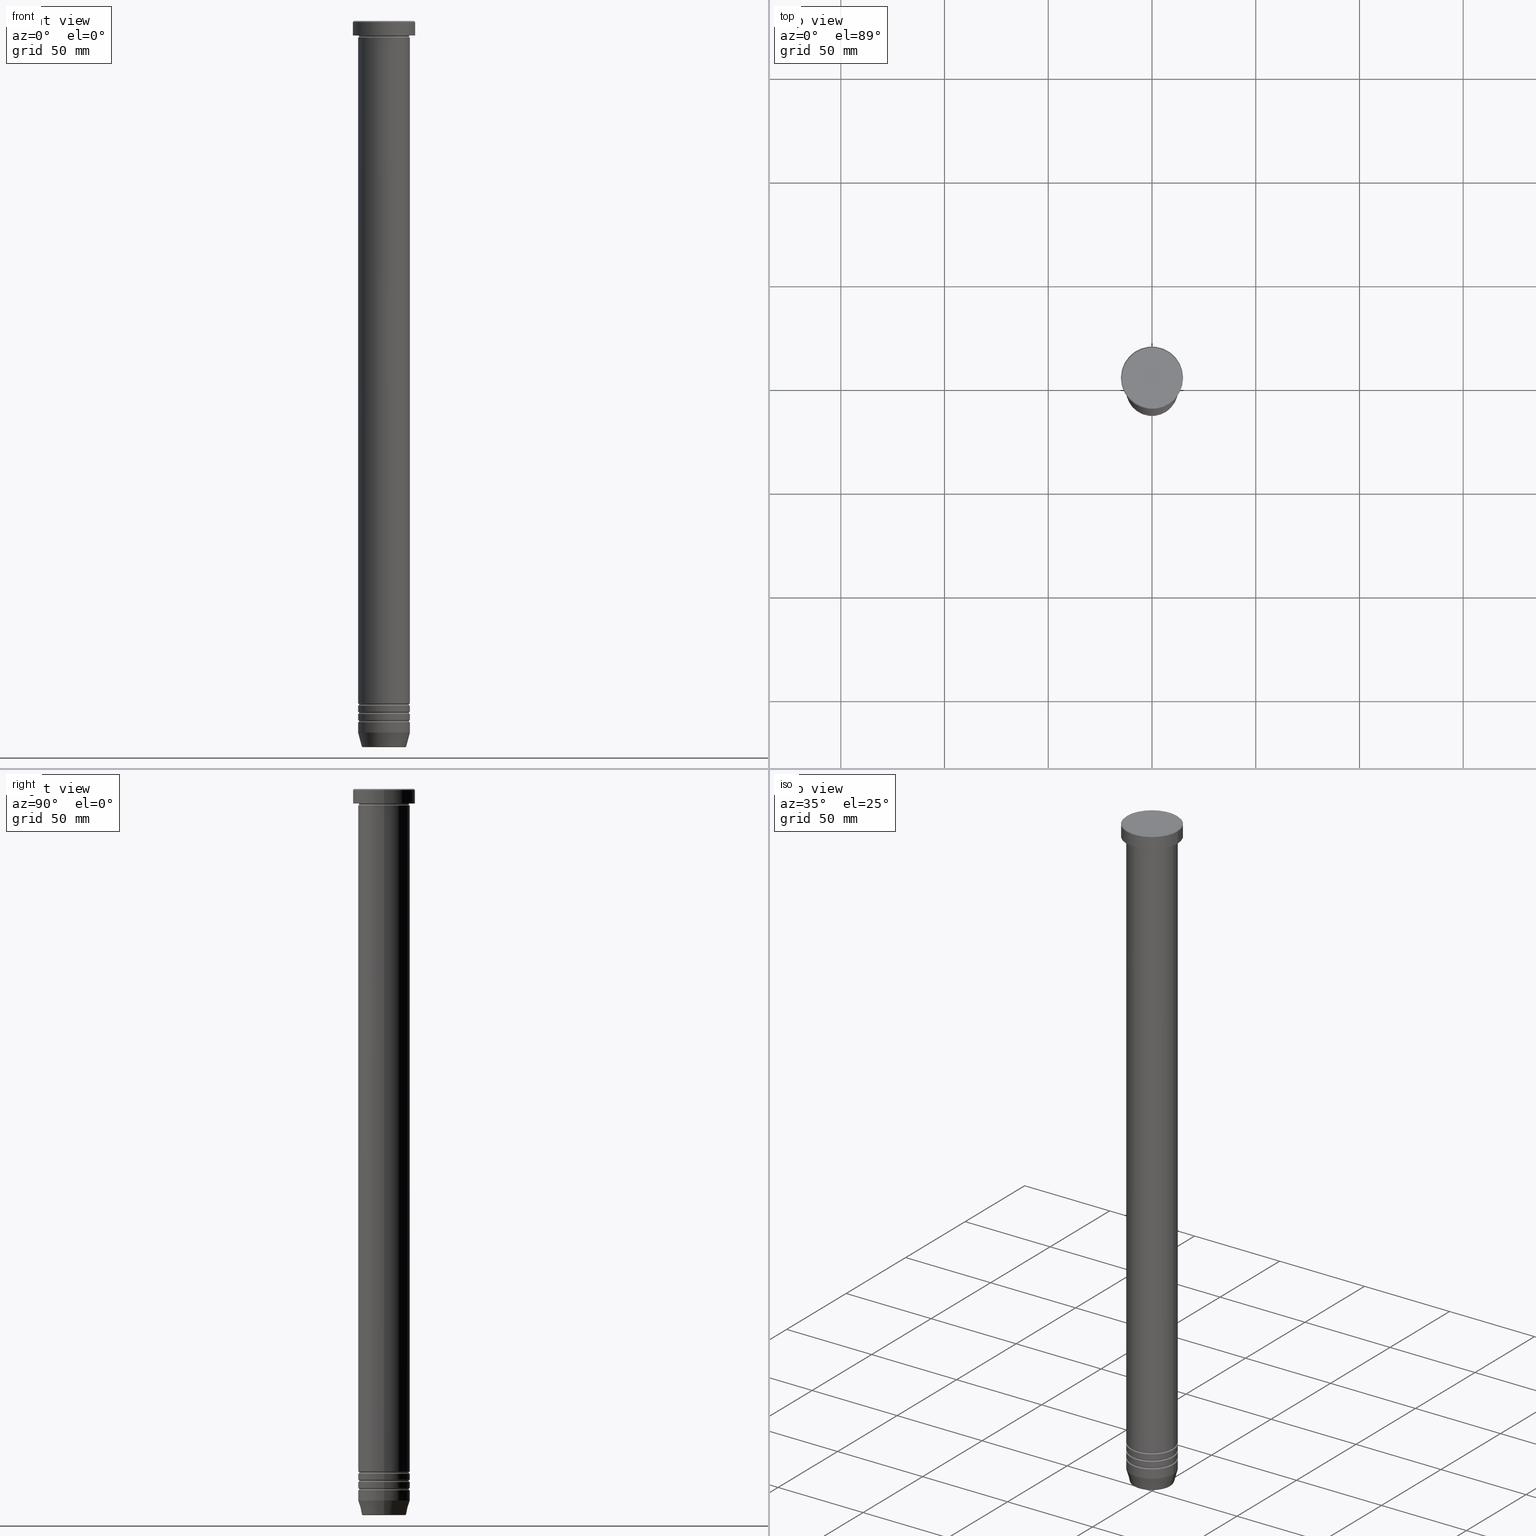
[diagram: canonical four-view strip — front | top / right | iso, engineering-drawing reading convention]
A machine part, canonical four-view strip (front | top / right | iso — engineering-drawing reading convention). The complete STEP part file that produces these views, byte-faithful:
ISO-10303-21;
HEADER;
FILE_DESCRIPTION (( 'STEP AP203' ),
    '1' );
FILE_NAME ('2e75.STEP',
    '2024-01-02T20:23:51',
    ( '' ),
    ( '' ),
    'SwSTEP 2.0',
    'SolidWorks 2019',
    '' );
FILE_SCHEMA (( 'CONFIG_CONTROL_DESIGN' ));
ENDSEC;

DATA;
#1 = VECTOR ( 'NONE', #561, 1000.000000000000000 ) ;
#2 = VERTEX_POINT ( 'NONE', #424 ) ;
#3 = CARTESIAN_POINT ( 'NONE',  ( 0.000000000000000000, 0.000000000000000000, -333.0000000000000568 ) ) ;
#4 = EDGE_LOOP ( 'NONE', ( #1005, #618, #139, #812 ) ) ;
#5 = EDGE_LOOP ( 'NONE', ( #582, #290, #286, #790 ) ) ;
#6 = DIRECTION ( 'NONE',  ( -0.000000000000000000, -0.000000000000000000, 1.000000000000000000 ) ) ;
#7 = DIRECTION ( 'NONE',  ( -0.000000000000000000, -0.000000000000000000, 1.000000000000000000 ) ) ;
#8 = EDGE_LOOP ( 'NONE', ( #564, #914, #84, #191 ) ) ;
#9 = CARTESIAN_POINT ( 'NONE',  ( 11.99999999999999645, 0.000000000000000000, -329.5000000000000568 ) ) ;
#10 = ORIENTED_EDGE ( 'NONE', *, *, #404, .T. ) ;
#11 = EDGE_CURVE ( 'NONE', #858, #829, #751, .T. ) ;
#12 = ORIENTED_EDGE ( 'NONE', *, *, #30, .F. ) ;
#13 = DIRECTION ( 'NONE',  ( 1.000000000000000000, 0.000000000000000000, 0.000000000000000000 ) ) ;
#14 = DIRECTION ( 'NONE',  ( 0.000000000000000000, 0.000000000000000000, -1.000000000000000000 ) ) ;
#15 = ORIENTED_EDGE ( 'NONE', *, *, #750, .T. ) ;
#16 = AXIS2_PLACEMENT_3D ( 'NONE', #380, #704, #388 ) ;
#17 = CARTESIAN_POINT ( 'NONE',  ( 0.000000000000000000, 0.000000000000000000, -349.5000000000000568 ) ) ;
#18 = VECTOR ( 'NONE', #374, 1000.000000000000000 ) ;
#19 = ADVANCED_FACE ( 'NONE', ( #91 ), #584, .T. ) ;
#20 = AXIS2_PLACEMENT_3D ( 'NONE', #368, #291, #611 ) ;
#21 = DIRECTION ( 'NONE',  ( 0.000000000000000000, 0.000000000000000000, -1.000000000000000000 ) ) ;
#22 = EDGE_LOOP ( 'NONE', ( #134, #601, #675, #440 ) ) ;
#23 = FACE_OUTER_BOUND ( 'NONE', #26, .T. ) ;
#24 = ORIENTED_EDGE ( 'NONE', *, *, #852, .T. ) ;
#25 = DIRECTION ( 'NONE',  ( -0.000000000000000000, -0.000000000000000000, 1.000000000000000000 ) ) ;
#26 = EDGE_LOOP ( 'NONE', ( #657, #817, #521, #590 ) ) ;
#27 = CARTESIAN_POINT ( 'NONE',  ( 0.000000000000000000, 0.000000000000000000, -7.500000000000000000 ) ) ;
#28 = ORIENTED_EDGE ( 'NONE', *, *, #707, .T. ) ;
#29 = PERSON ( 'NEUR�EN�', 'NEUR�EN�', 'NEUR�EN�', ('NEUR�EN�'), ('NEUR�EN�'), ('NEUR�EN�') ) ;
#30 = EDGE_CURVE ( 'NONE', #687, #400, #556, .T. ) ;
#31 = FACE_OUTER_BOUND ( 'NONE', #648, .T. ) ;
#32 = VERTEX_POINT ( 'NONE', #429 ) ;
#33 = FACE_OUTER_BOUND ( 'NONE', #202, .T. ) ;
#34 = ORIENTED_EDGE ( 'NONE', *, *, #87, .F. ) ;
#35 = CARTESIAN_POINT ( 'NONE',  ( 0.000000000000000000, 0.000000000000000000, -333.5000000000000568 ) ) ;
#36 = AXIS2_PLACEMENT_3D ( 'NONE', #727, #1054, #326 ) ;
#37 = ORIENTED_EDGE ( 'NONE', *, *, #174, .F. ) ;
#38 = CARTESIAN_POINT ( 'NONE',  ( 0.000000000000000000, 0.000000000000000000, 0.000000000000000000 ) ) ;
#39 = CARTESIAN_POINT ( 'NONE',  ( 0.000000000000000000, 0.000000000000000000, -337.5000000000000568 ) ) ;
#40 = AXIS2_PLACEMENT_3D ( 'NONE', #419, #580, #980 ) ;
#41 = ADVANCED_FACE ( 'NONE', ( #909 ), #926, .F. ) ;
#42 = CIRCLE ( 'NONE', #553, 0.5000000000000004441 ) ;
#43 = AXIS2_PLACEMENT_3D ( 'NONE', #127, #527, #519 ) ;
#44 = CIRCLE ( 'NONE', #188, 11.99999999999999645 ) ;
#45 = VERTEX_POINT ( 'NONE', #189 ) ;
#46 = DIRECTION ( 'NONE',  ( 1.000000000000000000, 0.000000000000000000, 0.000000000000000000 ) ) ;
#47 = ORIENTED_EDGE ( 'NONE', *, *, #814, .T. ) ;
#48 = ORIENTED_EDGE ( 'NONE', *, *, #280, .T. ) ;
#49 = ORIENTED_EDGE ( 'NONE', *, *, #932, .T. ) ;
#50 = CARTESIAN_POINT ( 'NONE',  ( 12.49999999999999645, 0.000000000000000000, -329.5000000000000568 ) ) ;
#51 = ORIENTED_EDGE ( 'NONE', *, *, #1009, .F. ) ;
#52 = CARTESIAN_POINT ( 'NONE',  ( 0.000000000000000000, 0.000000000000000000, -329.0000000000000568 ) ) ;
#53 = EDGE_CURVE ( 'NONE', #45, #448, #42, .T. ) ;
#54 = CARTESIAN_POINT ( 'NONE',  ( -12.49999999999999645, 1.530808498934191127E-15, 0.000000000000000000 ) ) ;
#55 = VERTEX_POINT ( 'NONE', #410 ) ;
#56 = DIRECTION ( 'NONE',  ( 1.000000000000000000, 0.000000000000000000, 0.000000000000000000 ) ) ;
#57 = AXIS2_PLACEMENT_3D ( 'NONE', #177, #514, #996 ) ;
#58 = CIRCLE ( 'NONE', #568, 12.00000000000000000 ) ;
#59 = APPROVAL ( #209, 'NEUR�EN�' ) ;
#60 = AXIS2_PLACEMENT_3D ( 'NONE', #284, #539, #622 ) ;
#61 = CARTESIAN_POINT ( 'NONE',  ( 0.000000000000000000, 0.000000000000000000, -0.4999999999999900080 ) ) ;
#62 = ORIENTED_EDGE ( 'NONE', *, *, #211, .F. ) ;
#63 = SECURITY_CLASSIFICATION_LEVEL ( 'unclassified' ) ;
#64 = TOROIDAL_SURFACE ( 'NONE', #20, 12.49999999999999645, 0.5000000000000000000 ) ;
#65 = FACE_OUTER_BOUND ( 'NONE', #413, .T. ) ;
#66 = PERSON_AND_ORGANIZATION_ROLE ( 'classification_officer' ) ;
#67 = ADVANCED_FACE ( 'NONE', ( #729 ), #686, .F. ) ;
#68 = DIRECTION ( 'NONE',  ( 1.000000000000000000, 0.000000000000000000, 0.000000000000000000 ) ) ;
#69 = CARTESIAN_POINT ( 'NONE',  ( -10.72365507213719305, 1.422038742429750516E-15, -349.6294095225512706 ) ) ;
#70 = DATE_TIME_ROLE ( 'creation_date' ) ;
#71 = DIRECTION ( 'NONE',  ( -0.000000000000000000, -0.000000000000000000, 1.000000000000000000 ) ) ;
#72 = VECTOR ( 'NONE', #76, 1000.000000000000000 ) ;
#73 = EDGE_CURVE ( 'NONE', #740, #829, #666, .T. ) ;
#74 = AXIS2_PLACEMENT_3D ( 'NONE', #52, #855, #1024 ) ;
#75 = ORIENTED_EDGE ( 'NONE', *, *, #215, .F. ) ;
#76 = DIRECTION ( 'NONE',  ( 0.2588190451025213501, 0.000000000000000000, 0.9659258262890680902 ) ) ;
#77 = AXIS2_PLACEMENT_3D ( 'NONE', #835, #711, #961 ) ;
#78 = TOROIDAL_SURFACE ( 'NONE', #943, 12.50000000000000000, 0.5000000000000000000 ) ;
#79 = FACE_OUTER_BOUND ( 'NONE', #299, .T. ) ;
#80 = ORIENTED_EDGE ( 'NONE', *, *, #255, .T. ) ;
#81 = ORIENTED_EDGE ( 'NONE', *, *, #694, .F. ) ;
#82 = DIRECTION ( 'NONE',  ( 1.000000000000000000, 0.000000000000000000, 0.000000000000000000 ) ) ;
#83 = APPROVAL_ROLE ( '' ) ;
#84 = ORIENTED_EDGE ( 'NONE', *, *, #412, .T. ) ;
#85 = DIRECTION ( 'NONE',  ( 0.000000000000000000, -0.000000000000000000, 1.000000000000000000 ) ) ;
#86 = VERTEX_POINT ( 'NONE', #180 ) ;
#87 = EDGE_CURVE ( 'NONE', #324, #86, #915, .T. ) ;
#88 = DIRECTION ( 'NONE',  ( 1.000000000000000000, 0.000000000000000000, 0.000000000000000000 ) ) ;
#89 = EDGE_LOOP ( 'NONE', ( #92, #323, #179, #75 ) ) ;
#90 = CARTESIAN_POINT ( 'NONE',  ( -12.50000000000000000, 1.530808498934191521E-15, -7.500000000000000000 ) ) ;
#91 = FACE_OUTER_BOUND ( 'NONE', #4, .T. ) ;
#92 = ORIENTED_EDGE ( 'NONE', *, *, #572, .F. ) ;
#93 = CIRCLE ( 'NONE', #861, 12.50000000000000000 ) ;
#94 = EDGE_LOOP ( 'NONE', ( #690, #941, #1056, #966 ) ) ;
#95 = ADVANCED_FACE ( 'NONE', ( #451 ), #522, .T. ) ;
#96 = DIRECTION ( 'NONE',  ( 0.000000000000000000, 0.000000000000000000, -1.000000000000000000 ) ) ;
#97 = ORIENTED_EDGE ( 'NONE', *, *, #602, .T. ) ;
#98 = DIRECTION ( 'NONE',  ( 1.000000000000000000, 0.000000000000000000, 0.000000000000000000 ) ) ;
#99 = ORIENTED_EDGE ( 'NONE', *, *, #421, .F. ) ;
#100 = AXIS2_PLACEMENT_3D ( 'NONE', #570, #489, #631 ) ;
#101 = AXIS2_PLACEMENT_3D ( 'NONE', #815, #745, #574 ) ;
#102 = DIRECTION ( 'NONE',  ( -0.000000000000000000, -0.000000000000000000, 1.000000000000000000 ) ) ;
#103 = CARTESIAN_POINT ( 'NONE',  ( -12.50000000000000000, 1.530808498934191521E-15, -334.0000000000000568 ) ) ;
#104 = EDGE_LOOP ( 'NONE', ( #509, #596 ) ) ;
#105 = DIRECTION ( 'NONE',  ( 1.000000000000000000, 0.000000000000000000, 0.000000000000000000 ) ) ;
#106 = ORIENTED_EDGE ( 'NONE', *, *, #459, .F. ) ;
#107 = EDGE_CURVE ( 'NONE', #45, #756, #825, .T. ) ;
#108 = CARTESIAN_POINT ( 'NONE',  ( 0.000000000000000000, 0.000000000000000000, 0.000000000000000000 ) ) ;
#109 = CYLINDRICAL_SURFACE ( 'NONE', #57, 12.50000000000000000 ) ;
#110 = DIRECTION ( 'NONE',  ( -0.000000000000000000, -0.000000000000000000, 1.000000000000000000 ) ) ;
#111 = ORIENTED_EDGE ( 'NONE', *, *, #459, .T. ) ;
#112 = CC_DESIGN_PERSON_AND_ORGANIZATION_ASSIGNMENT ( #379, #535, ( #163 ) ) ;
#113 = CARTESIAN_POINT ( 'NONE',  ( -10.24069215899265828, 1.254123087356375833E-15, -349.5000000000000568 ) ) ;
#114 = DIRECTION ( 'NONE',  ( -0.000000000000000000, -0.000000000000000000, 1.000000000000000000 ) ) ;
#115 = TOROIDAL_SURFACE ( 'NONE', #616, 12.50000000000000000, 0.5000000000000000000 ) ;
#116 = ORIENTED_EDGE ( 'NONE', *, *, #73, .F. ) ;
#117 = DIRECTION ( 'NONE',  ( 1.000000000000000000, 0.000000000000000000, 0.000000000000000000 ) ) ;
#118 = ORIENTED_EDGE ( 'NONE', *, *, #325, .T. ) ;
#119 = AXIS2_PLACEMENT_3D ( 'NONE', #108, #347, #654 ) ;
#120 = AXIS2_PLACEMENT_3D ( 'NONE', #322, #248, #403 ) ;
#121 = CARTESIAN_POINT ( 'NONE',  ( 0.000000000000000000, 0.000000000000000000, -330.0000000000000568 ) ) ;
#122 = AXIS2_PLACEMENT_3D ( 'NONE', #129, #456, #222 ) ;
#123 = AXIS2_PLACEMENT_3D ( 'NONE', #881, #162, #237 ) ;
#124 = CARTESIAN_POINT ( 'NONE',  ( -12.50000000000000000, 1.530808498934191521E-15, -70.00000000000000000 ) ) ;
#125 = DIRECTION ( 'NONE',  ( 0.000000000000000000, 0.000000000000000000, -1.000000000000000000 ) ) ;
#126 = CALENDAR_DATE ( 2024, 2, 1 ) ;
#127 = CARTESIAN_POINT ( 'NONE',  ( -12.49999999999999645, 0.000000000000000000, -329.5000000000000568 ) ) ;
#128 = EDGE_CURVE ( 'NONE', #438, #2, #554, .T. ) ;
#129 = CARTESIAN_POINT ( 'NONE',  ( 12.49999999999999645, 0.000000000000000000, -337.5000000000000568 ) ) ;
#130 =( LENGTH_UNIT ( ) NAMED_UNIT ( * ) SI_UNIT ( .MILLI., .METRE. ) );
#131 = ORIENTED_EDGE ( 'NONE', *, *, #371, .F. ) ;
#132 = CIRCLE ( 'NONE', #924, 12.50000000000000000 ) ;
#133 = DIRECTION ( 'NONE',  ( -0.000000000000000000, -0.000000000000000000, 1.000000000000000000 ) ) ;
#134 = ORIENTED_EDGE ( 'NONE', *, *, #726, .T. ) ;
#135 = VECTOR ( 'NONE', #25, 1000.000000000000000 ) ;
#136 = LINE ( 'NONE', #54, #166 ) ;
#137 = EDGE_LOOP ( 'NONE', ( #47, #769, #1018, #753 ) ) ;
#138 = DIRECTION ( 'NONE',  ( 1.000000000000000000, 0.000000000000000000, 0.000000000000000000 ) ) ;
#139 = ORIENTED_EDGE ( 'NONE', *, *, #958, .T. ) ;
#140 = EDGE_CURVE ( 'NONE', #55, #511, #891, .T. ) ;
#141 = DIRECTION ( 'NONE',  ( 0.000000000000000000, -1.000000000000000000, 0.000000000000000000 ) ) ;
#142 = DIRECTION ( 'NONE',  ( -0.000000000000000000, -0.000000000000000000, 1.000000000000000000 ) ) ;
#143 = EDGE_CURVE ( 'NONE', #994, #989, #1011, .T. ) ;
#144 = CARTESIAN_POINT ( 'NONE',  ( 0.000000000000000000, 0.000000000000000000, -334.0000000000000568 ) ) ;
#145 = DIRECTION ( 'NONE',  ( -0.000000000000000000, -0.000000000000000000, 1.000000000000000000 ) ) ;
#146 = LOCAL_TIME ( 21, 23, 51.00000000000000000, #850 ) ;
#147 = CLOSED_SHELL ( 'NONE', ( #247, #485, #560, #978, #260, #225, #206, #356, #1017, #19, #41, #992, #546 ) ) ;
#148 = AXIS2_PLACEMENT_3D ( 'NONE', #501, #6, #336 ) ;
#149 = EDGE_CURVE ( 'NONE', #1008, #767, #703, .T. ) ;
#150 = FACE_OUTER_BOUND ( 'NONE', #241, .T. ) ;
#151 = AXIS2_PLACEMENT_3D ( 'NONE', #61, #242, #968 ) ;
#152 = CYLINDRICAL_SURFACE ( 'NONE', #607, 12.49999999999999645 ) ;
#153 = FACE_OUTER_BOUND ( 'NONE', #867, .T. ) ;
#154 = FACE_OUTER_BOUND ( 'NONE', #89, .T. ) ;
#155 = EDGE_LOOP ( 'NONE', ( #506, #964, #48, #51 ) ) ;
#156 = CARTESIAN_POINT ( 'NONE',  ( 12.49999999999999822, 0.000000000000000000, -333.0000000000000568 ) ) ;
#157 = COORDINATED_UNIVERSAL_TIME_OFFSET ( 1, 0, .AHEAD. ) ;
#158 = ORIENTED_EDGE ( 'NONE', *, *, #762, .F. ) ;
#159 = DIRECTION ( 'NONE',  ( 1.000000000000000000, 0.000000000000000000, 0.000000000000000000 ) ) ;
#160 = AXIS2_PLACEMENT_3D ( 'NONE', #369, #295, #375 ) ;
#161 = EDGE_LOOP ( 'NONE', ( #386, #982, #24, #12 ) ) ;
#162 = DIRECTION ( 'NONE',  ( -0.000000000000000000, -0.000000000000000000, 1.000000000000000000 ) ) ;
#163 = PRODUCT ( '2e75', '2e75', '', ( #449 ) ) ;
#164 = AXIS2_PLACEMENT_3D ( 'NONE', #495, #71, #173 ) ;
#165 = ORIENTED_EDGE ( 'NONE', *, *, #644, .T. ) ;
#166 = VECTOR ( 'NONE', #853, 1000.000000000000000 ) ;
#167 = FACE_OUTER_BOUND ( 'NONE', #5, .T. ) ;
#168 = AXIS2_PLACEMENT_3D ( 'NONE', #1051, #563, #1037 ) ;
#169 = EDGE_CURVE ( 'NONE', #2, #438, #586, .T. ) ;
#170 = ORIENTED_EDGE ( 'NONE', *, *, #169, .T. ) ;
#171 = CARTESIAN_POINT ( 'NONE',  ( 0.000000000000000000, 0.000000000000000000, -337.0000000000000568 ) ) ;
#172 = VERTEX_POINT ( 'NONE', #1035 ) ;
#173 = DIRECTION ( 'NONE',  ( 1.000000000000000000, 0.000000000000000000, 0.000000000000000000 ) ) ;
#174 = EDGE_CURVE ( 'NONE', #989, #994, #302, .T. ) ;
#175 = ORIENTED_EDGE ( 'NONE', *, *, #856, .T. ) ;
#176 = ORIENTED_EDGE ( 'NONE', *, *, #814, .F. ) ;
#177 = CARTESIAN_POINT ( 'NONE',  ( 0.000000000000000000, 0.000000000000000000, 0.000000000000000000 ) ) ;
#178 = DIRECTION ( 'NONE',  ( -0.000000000000000000, -0.000000000000000000, 1.000000000000000000 ) ) ;
#179 = ORIENTED_EDGE ( 'NONE', *, *, #875, .T. ) ;
#180 = CARTESIAN_POINT ( 'NONE',  ( -15.00000000000000000, 1.836970198721029589E-15, -0.4999999999999900080 ) ) ;
#181 = CIRCLE ( 'NONE', #518, 12.00000000000000000 ) ;
#182 = DIRECTION ( 'NONE',  ( 1.000000000000000000, 0.000000000000000000, 0.000000000000000000 ) ) ;
#183 = EDGE_CURVE ( 'NONE', #400, #531, #597, .T. ) ;
#184 = EDGE_LOOP ( 'NONE', ( #81, #441, #426, #170 ) ) ;
#185 = DIRECTION ( 'NONE',  ( -1.000000000000000000, -1.224646799147353454E-16, 0.000000000000000000 ) ) ;
#186 = EDGE_LOOP ( 'NONE', ( #719, #534 ) ) ;
#187 = AXIS2_PLACEMENT_3D ( 'NONE', #950, #920, #436 ) ;
#188 = AXIS2_PLACEMENT_3D ( 'NONE', #866, #216, #46 ) ;
#189 = CARTESIAN_POINT ( 'NONE',  ( -12.49999999999999289, 1.530808498934190930E-15, -337.0000000000000568 ) ) ;
#190 = CYLINDRICAL_SURFACE ( 'NONE', #500, 12.50000000000000000 ) ;
#191 = ORIENTED_EDGE ( 'NONE', *, *, #762, .T. ) ;
#192 = EDGE_CURVE ( 'NONE', #849, #438, #381, .T. ) ;
#193 = DIRECTION ( 'NONE',  ( 1.224646799147353207E-16, 1.000000000000000000, 0.000000000000000000 ) ) ;
#194 = ORIENTED_EDGE ( 'NONE', *, *, #255, .F. ) ;
#195 = CARTESIAN_POINT ( 'NONE',  ( -14.50000000000001066, 0.000000000000000000, 0.000000000000000000 ) ) ;
#196 = DIRECTION ( 'NONE',  ( -0.000000000000000000, -0.000000000000000000, 1.000000000000000000 ) ) ;
#197 = ORIENTED_EDGE ( 'NONE', *, *, #841, .T. ) ;
#198 = DIRECTION ( 'NONE',  ( -0.000000000000000000, -0.000000000000000000, 1.000000000000000000 ) ) ;
#199 = DIRECTION ( 'NONE',  ( 1.000000000000000000, 0.000000000000000000, 0.000000000000000000 ) ) ;
#200 = FACE_OUTER_BOUND ( 'NONE', #805, .T. ) ;
#201 = CIRCLE ( 'NONE', #74, 12.49999999999999289 ) ;
#202 = EDGE_LOOP ( 'NONE', ( #765, #693 ) ) ;
#203 = CARTESIAN_POINT ( 'NONE',  ( 0.000000000000000000, 0.000000000000000000, 0.000000000000000000 ) ) ;
#204 = DIRECTION ( 'NONE',  ( -1.000000000000000000, 0.000000000000000000, -0.000000000000000000 ) ) ;
#205 = AXIS2_PLACEMENT_3D ( 'NONE', #203, #977, #117 ) ;
#206 = ADVANCED_FACE ( 'NONE', ( #65 ), #366, .T. ) ;
#207 = DIRECTION ( 'NONE',  ( 0.000000000000000000, 0.000000000000000000, -1.000000000000000000 ) ) ;
#208 = LINE ( 'NONE', #857, #541 ) ;
#209 = APPROVAL_STATUS ( 'not_yet_approved' ) ;
#210 = EDGE_LOOP ( 'NONE', ( #97, #49, #158, #612 ) ) ;
#211 = EDGE_CURVE ( 'NONE', #339, #423, #487, .T. ) ;
#212 = LINE ( 'NONE', #871, #18 ) ;
#213 = VECTOR ( 'NONE', #985, 1000.000000000000000 ) ;
#214 = CC_DESIGN_APPROVAL ( #59, ( #594 ) ) ;
#215 = EDGE_CURVE ( 'NONE', #339, #250, #717, .T. ) ;
#216 = DIRECTION ( 'NONE',  ( 0.000000000000000000, 0.000000000000000000, -1.000000000000000000 ) ) ;
#217 = ORIENTED_EDGE ( 'NONE', *, *, #229, .T. ) ;
#218 = CARTESIAN_POINT ( 'NONE',  ( -10.24069215899265828, 1.283696036640842573E-15, -350.0000000000000568 ) ) ;
#219 = CIRCLE ( 'NONE', #939, 12.50000000000000000 ) ;
#220 = AXIS2_PLACEMENT_3D ( 'NONE', #259, #515, #185 ) ;
#221 = EDGE_LOOP ( 'NONE', ( #904, #431, #28, #736 ) ) ;
#222 = DIRECTION ( 'NONE',  ( 0.000000000000000000, 0.000000000000000000, -1.000000000000000000 ) ) ;
#223 = ORIENTED_EDGE ( 'NONE', *, *, #497, .T. ) ;
#224 = DIRECTION ( 'NONE',  ( -1.000000000000000000, 0.000000000000000000, 0.000000000000000000 ) ) ;
#225 = ADVANCED_FACE ( 'NONE', ( #548 ), #625, .T. ) ;
#226 = DIRECTION ( 'NONE',  ( -1.000000000000000000, 1.224646799147353454E-16, 0.000000000000000000 ) ) ;
#227 = DIRECTION ( 'NONE',  ( 1.000000000000000000, 0.000000000000000000, 0.000000000000000000 ) ) ;
#228 = FACE_OUTER_BOUND ( 'NONE', #244, .T. ) ;
#229 = EDGE_CURVE ( 'NONE', #681, #373, #58, .T. ) ;
#230 = DIRECTION ( 'NONE',  ( -1.000000000000000000, 0.000000000000000000, 0.000000000000000000 ) ) ;
#231 = CALENDAR_DATE ( 2024, 2, 1 ) ;
#232 = CARTESIAN_POINT ( 'NONE',  ( 0.000000000000000000, 0.000000000000000000, -350.0000000000000568 ) ) ;
#233 = CIRCLE ( 'NONE', #40, 11.99999999999999645 ) ;
#234 = ADVANCED_FACE ( 'NONE', ( #228 ), #443, .T. ) ;
#235 = AXIS2_PLACEMENT_3D ( 'NONE', #17, #620, #842 ) ;
#236 = AXIS2_PLACEMENT_3D ( 'NONE', #269, #671, #523 ) ;
#237 = DIRECTION ( 'NONE',  ( 1.000000000000000000, 0.000000000000000000, 0.000000000000000000 ) ) ;
#238 = COORDINATED_UNIVERSAL_TIME_OFFSET ( 1, 0, .AHEAD. ) ;
#239 = TOROIDAL_SURFACE ( 'NONE', #697, 12.49999999999999645, 0.5000000000000000000 ) ;
#240 = CARTESIAN_POINT ( 'NONE',  ( 0.000000000000000000, 0.000000000000000000, -333.0000000000000568 ) ) ;
#241 = EDGE_LOOP ( 'NONE', ( #261, #1000, #320, #62 ) ) ;
#242 = DIRECTION ( 'NONE',  ( 0.000000000000000000, 0.000000000000000000, -1.000000000000000000 ) ) ;
#243 = CARTESIAN_POINT ( 'NONE',  ( 12.50000000000000000, 1.530808498934191521E-15, -7.500000000000000000 ) ) ;
#244 = EDGE_LOOP ( 'NONE', ( #830, #111, #647, #608 ) ) ;
#245 = CARTESIAN_POINT ( 'NONE',  ( 12.49999999999999289, 0.000000000000000000, -337.0000000000000568 ) ) ;
#246 = DATE_AND_TIME ( #317, #905 ) ;
#247 = ADVANCED_FACE ( 'NONE', ( #947 ), #843, .T. ) ;
#248 = DIRECTION ( 'NONE',  ( 0.000000000000000000, -1.000000000000000000, 0.000000000000000000 ) ) ;
#249 = AXIS2_PLACEMENT_3D ( 'NONE', #876, #1032, #230 ) ;
#250 = VERTEX_POINT ( 'NONE', #627 ) ;
#251 = AXIS2_PLACEMENT_3D ( 'NONE', #888, #562, #491 ) ;
#252 = LINE ( 'NONE', #476, #1 ) ;
#253 = AXIS2_PLACEMENT_3D ( 'NONE', #294, #605, #940 ) ;
#254 = DIRECTION ( 'NONE',  ( -0.000000000000000000, -0.000000000000000000, 1.000000000000000000 ) ) ;
#255 = EDGE_CURVE ( 'NONE', #829, #86, #619, .T. ) ;
#256 = VERTEX_POINT ( 'NONE', #394 ) ;
#257 = DIRECTION ( 'NONE',  ( -0.000000000000000000, -0.000000000000000000, 1.000000000000000000 ) ) ;
#258 = VERTEX_POINT ( 'NONE', #414 ) ;
#259 = CARTESIAN_POINT ( 'NONE',  ( 12.49999999999999645, 1.530808498934191127E-15, -337.5000000000000568 ) ) ;
#260 = ADVANCED_FACE ( 'NONE', ( #1052 ), #965, .T. ) ;
#261 = ORIENTED_EDGE ( 'NONE', *, *, #215, .T. ) ;
#262 = CARTESIAN_POINT ( 'NONE',  ( 0.000000000000000000, 0.000000000000000000, -7.500000000000000000 ) ) ;
#263 = CARTESIAN_POINT ( 'NONE',  ( 0.000000000000000000, 0.000000000000000000, -334.0000000000000568 ) ) ;
#264 = ORIENTED_EDGE ( 'NONE', *, *, #517, .F. ) ;
#265 = AXIS2_PLACEMENT_3D ( 'NONE', #623, #778, #138 ) ;
#266 = ORIENTED_EDGE ( 'NONE', *, *, #658, .F. ) ;
#267 = ADVANCED_FACE ( 'NONE', ( #640 ), #409, .F. ) ;
#268 = CARTESIAN_POINT ( 'NONE',  ( 0.000000000000000000, 0.000000000000000000, -6.999999999999999112 ) ) ;
#269 = CARTESIAN_POINT ( 'NONE',  ( 12.49999999999999645, 1.530808498934191127E-15, -329.5000000000000568 ) ) ;
#270 = TOROIDAL_SURFACE ( 'NONE', #251, 12.49999999999999645, 0.5000000000000000000 ) ;
#271 = CIRCLE ( 'NONE', #461, 12.49999999999999822 ) ;
#272 = EDGE_LOOP ( 'NONE', ( #747, #893, #365, #358 ) ) ;
#273 = FACE_OUTER_BOUND ( 'NONE', #774, .T. ) ;
#274 = CARTESIAN_POINT ( 'NONE',  ( 0.000000000000000000, 0.000000000000000000, -337.5000000000000568 ) ) ;
#275 = EDGE_LOOP ( 'NONE', ( #106, #1029, #659, #677 ) ) ;
#276 = DIRECTION ( 'NONE',  ( 0.000000000000000000, 0.000000000000000000, -1.000000000000000000 ) ) ;
#277 = CARTESIAN_POINT ( 'NONE',  ( 10.24069215899265828, 0.000000000000000000, -350.0000000000000568 ) ) ;
#278 = ORIENTED_EDGE ( 'NONE', *, *, #340, .F. ) ;
#279 = CARTESIAN_POINT ( 'NONE',  ( 0.000000000000000000, 0.000000000000000000, -350.0000000000000568 ) ) ;
#280 = EDGE_CURVE ( 'NONE', #918, #457, #955, .T. ) ;
#281 = CARTESIAN_POINT ( 'NONE',  ( 12.50000000000000000, 0.000000000000000000, 0.000000000000000000 ) ) ;
#282 = ORIENTED_EDGE ( 'NONE', *, *, #412, .F. ) ;
#283 = AXIS2_PLACEMENT_3D ( 'NONE', #701, #544, #614 ) ;
#284 = CARTESIAN_POINT ( 'NONE',  ( 0.000000000000000000, 0.000000000000000000, -6.999999999999998224 ) ) ;
#285 = ORIENTED_EDGE ( 'NONE', *, *, #468, .T. ) ;
#286 = ORIENTED_EDGE ( 'NONE', *, *, #624, .T. ) ;
#287 = AXIS2_PLACEMENT_3D ( 'NONE', #851, #467, #786 ) ;
#288 = EDGE_CURVE ( 'NONE', #681, #258, #702, .T. ) ;
#289 = AXIS2_PLACEMENT_3D ( 'NONE', #742, #988, #427 ) ;
#290 = ORIENTED_EDGE ( 'NONE', *, *, #444, .F. ) ;
#291 = DIRECTION ( 'NONE',  ( 0.000000000000000000, 0.000000000000000000, -1.000000000000000000 ) ) ;
#292 = CARTESIAN_POINT ( 'NONE',  ( 0.000000000000000000, 0.000000000000000000, -330.0000000000000568 ) ) ;
#293 = ADVANCED_FACE ( 'NONE', ( #807 ), #776, .T. ) ;
#294 = CARTESIAN_POINT ( 'NONE',  ( 0.000000000000000000, 0.000000000000000000, 0.000000000000000000 ) ) ;
#295 = DIRECTION ( 'NONE',  ( 0.000000000000000000, 0.000000000000000000, -1.000000000000000000 ) ) ;
#296 = CIRCLE ( 'NONE', #870, 0.5000000000000004441 ) ;
#297 = EDGE_CURVE ( 'NONE', #256, #592, #604, .T. ) ;
#298 = FACE_OUTER_BOUND ( 'NONE', #811, .T. ) ;
#299 = EDGE_LOOP ( 'NONE', ( #266, #1015, #197, #831 ) ) ;
#300 = DIRECTION ( 'NONE',  ( 1.000000000000000000, 0.000000000000000000, 0.000000000000000000 ) ) ;
#301 = DIRECTION ( 'NONE',  ( 1.000000000000000000, 0.000000000000000000, 0.000000000000000000 ) ) ;
#302 = CIRCLE ( 'NONE', #808, 12.50000000000000000 ) ;
#303 = AXIS2_PLACEMENT_3D ( 'NONE', #759, #848, #505 ) ;
#304 = CARTESIAN_POINT ( 'NONE',  ( 0.000000000000000000, 0.000000000000000000, -7.500000000000000000 ) ) ;
#305 = PERSON_AND_ORGANIZATION ( #29, #313 ) ;
#306 = DIRECTION ( 'NONE',  ( -0.000000000000000000, -0.000000000000000000, 1.000000000000000000 ) ) ;
#307 = CARTESIAN_POINT ( 'NONE',  ( 15.00000000000000000, 0.000000000000000000, -0.4999999999999900080 ) ) ;
#308 = DIRECTION ( 'NONE',  ( -1.000000000000000000, 0.000000000000000000, 0.000000000000000000 ) ) ;
#309 = PRODUCT_RELATED_PRODUCT_CATEGORY ( 'detail', '', ( #163 ) ) ;
#310 = DIRECTION ( 'NONE',  ( -0.000000000000000000, -0.000000000000000000, 1.000000000000000000 ) ) ;
#311 = APPROVAL_DATE_TIME ( #706, #549 ) ;
#312 = CARTESIAN_POINT ( 'NONE',  ( -14.50000000000001066, 0.000000000000000000, 0.000000000000000000 ) ) ;
#313 = ORGANIZATION ( 'NEUR�EN�', 'NEUR�EN�', '' ) ;
#314 = AXIS2_PLACEMENT_3D ( 'NONE', #232, #969, #68 ) ;
#315 = AXIS2_PLACEMENT_3D ( 'NONE', #38, #542, #547 ) ;
#316 = LINE ( 'NONE', #635, #537 ) ;
#317 = CALENDAR_DATE ( 2024, 2, 1 ) ;
#318 = DIRECTION ( 'NONE',  ( -0.000000000000000000, -0.000000000000000000, 1.000000000000000000 ) ) ;
#319 = ADVANCED_FACE ( 'NONE', ( #734 ), #270, .F. ) ;
#320 = ORIENTED_EDGE ( 'NONE', *, *, #628, .T. ) ;
#321 = DIRECTION ( 'NONE',  ( 1.000000000000000000, 0.000000000000000000, 0.000000000000000000 ) ) ;
#322 = CARTESIAN_POINT ( 'NONE',  ( 10.24069215899265828, 0.000000000000000000, -349.5000000000000568 ) ) ;
#323 = ORIENTED_EDGE ( 'NONE', *, *, #371, .T. ) ;
#324 = VERTEX_POINT ( 'NONE', #312 ) ;
#325 = EDGE_CURVE ( 'NONE', #740, #324, #908, .T. ) ;
#326 = DIRECTION ( 'NONE',  ( 1.000000000000000000, 0.000000000000000000, 0.000000000000000000 ) ) ;
#327 = CARTESIAN_POINT ( 'NONE',  ( 0.000000000000000000, 0.000000000000000000, 0.000000000000000000 ) ) ;
#328 = VECTOR ( 'NONE', #797, 1000.000000000000000 ) ;
#329 = CIRCLE ( 'NONE', #283, 0.5000000000000004441 ) ;
#330 = ORIENTED_EDGE ( 'NONE', *, *, #288, .T. ) ;
#331 = AXIS2_PLACEMENT_3D ( 'NONE', #327, #484, #645 ) ;
#332 = DIRECTION ( 'NONE',  ( -1.000000000000000000, 0.000000000000000000, -0.000000000000000000 ) ) ;
#333 = CIRCLE ( 'NONE', #420, 15.00000000000000000 ) ;
#334 = DIRECTION ( 'NONE',  ( 1.224646799147353207E-16, 1.000000000000000000, 0.000000000000000000 ) ) ;
#335 = ADVANCED_FACE ( 'NONE', ( #167 ), #970, .F. ) ;
#336 = DIRECTION ( 'NONE',  ( 1.000000000000000000, 0.000000000000000000, 0.000000000000000000 ) ) ;
#337 = CARTESIAN_POINT ( 'NONE',  ( -12.49999999999999645, 1.530808498934191127E-15, -333.5000000000000568 ) ) ;
#338 = DIRECTION ( 'NONE',  ( 1.000000000000000000, 0.000000000000000000, 0.000000000000000000 ) ) ;
#339 = VERTEX_POINT ( 'NONE', #1049 ) ;
#340 = EDGE_CURVE ( 'NONE', #400, #687, #219, .T. ) ;
#341 = CARTESIAN_POINT ( 'NONE',  ( 14.50000000000001066, 1.775737858763663593E-15, 0.000000000000000000 ) ) ;
#342 = CARTESIAN_POINT ( 'NONE',  ( 0.000000000000000000, 0.000000000000000000, -333.5000000000000568 ) ) ;
#343 = ORIENTED_EDGE ( 'NONE', *, *, #743, .F. ) ;
#344 = CARTESIAN_POINT ( 'NONE',  ( 0.000000000000000000, 0.000000000000000000, -6.999999999999998224 ) ) ;
#345 = ORIENTED_EDGE ( 'NONE', *, *, #971, .T. ) ;
#346 = APPROVAL_PERSON_ORGANIZATION ( #791, #393, #715 ) ;
#347 = DIRECTION ( 'NONE',  ( -0.000000000000000000, -0.000000000000000000, 1.000000000000000000 ) ) ;
#348 = CARTESIAN_POINT ( 'NONE',  ( 12.49999999999999289, 0.000000000000000000, -329.0000000000000568 ) ) ;
#349 = CARTESIAN_POINT ( 'NONE',  ( 12.50000000000000000, 0.000000000000000000, -343.0000000000000000 ) ) ;
#350 = EDGE_LOOP ( 'NONE', ( #1023, #330, #819, #661 ) ) ;
#351 = AXIS2_PLACEMENT_3D ( 'NONE', #354, #672, #676 ) ;
#352 = CIRCLE ( 'NONE', #303, 0.5000000000000004441 ) ;
#353 = CIRCLE ( 'NONE', #168, 0.5000000000000004441 ) ;
#354 = CARTESIAN_POINT ( 'NONE',  ( 0.000000000000000000, 0.000000000000000000, -70.00000000000000000 ) ) ;
#355 = DIRECTION ( 'NONE',  ( 1.224646799147353207E-16, 1.000000000000000000, 0.000000000000000000 ) ) ;
#356 = ADVANCED_FACE ( 'NONE', ( #1055 ), #637, .T. ) ;
#357 = CARTESIAN_POINT ( 'NONE',  ( 12.50000000000000000, 0.000000000000000000, -70.00000000000000000 ) ) ;
#358 = ORIENTED_EDGE ( 'NONE', *, *, #617, .F. ) ;
#359 = DIRECTION ( 'NONE',  ( 1.000000000000000000, 0.000000000000000000, 0.000000000000000000 ) ) ;
#360 = DIRECTION ( 'NONE',  ( 0.000000000000000000, 0.000000000000000000, -1.000000000000000000 ) ) ;
#361 = EDGE_LOOP ( 'NONE', ( #446, #15, #278, #834 ) ) ;
#362 = EDGE_CURVE ( 'NONE', #373, #256, #735, .T. ) ;
#363 = ORIENTED_EDGE ( 'NONE', *, *, #149, .T. ) ;
#364 = PLANE ( 'NONE',  #804 ) ;
#365 = ORIENTED_EDGE ( 'NONE', *, *, #999, .F. ) ;
#366 = PLANE ( 'NONE',  #862 ) ;
#367 = VECTOR ( 'NONE', #7, 1000.000000000000000 ) ;
#368 = CARTESIAN_POINT ( 'NONE',  ( 0.000000000000000000, 0.000000000000000000, -329.5000000000000568 ) ) ;
#369 = CARTESIAN_POINT ( 'NONE',  ( 0.000000000000000000, 0.000000000000000000, -333.5000000000000568 ) ) ;
#370 = AXIS2_PLACEMENT_3D ( 'NONE', #995, #944, #1031 ) ;
#371 = EDGE_CURVE ( 'NONE', #679, #849, #473, .T. ) ;
#372 = CIRCLE ( 'NONE', #122, 0.5000000000000004441 ) ;
#373 = VERTEX_POINT ( 'NONE', #651 ) ;
#374 = DIRECTION ( 'NONE',  ( -0.000000000000000000, -0.000000000000000000, 1.000000000000000000 ) ) ;
#375 = DIRECTION ( 'NONE',  ( -1.000000000000000000, 0.000000000000000000, 0.000000000000000000 ) ) ;
#376 = ADVANCED_FACE ( 'NONE', ( #79 ), #152, .T. ) ;
#377 = FACE_OUTER_BOUND ( 'NONE', #639, .T. ) ;
#378 = CARTESIAN_POINT ( 'NONE',  ( 12.50000000000000000, 0.000000000000000000, -8.000000000000000000 ) ) ;
#379 = PERSON_AND_ORGANIZATION ( #29, #313 ) ;
#380 = CARTESIAN_POINT ( 'NONE',  ( 0.000000000000000000, 0.000000000000000000, 0.000000000000000000 ) ) ;
#381 = CIRCLE ( 'NONE', #187, 0.5000000000000004441 ) ;
#382 = AXIS2_PLACEMENT_3D ( 'NONE', #1028, #789, #453 ) ;
#383 = CIRCLE ( 'NONE', #382, 0.5000000000000004441 ) ;
#384 = ADVANCED_FACE ( 'NONE', ( #154 ), #480, .T. ) ;
#385 = FACE_OUTER_BOUND ( 'NONE', #846, .T. ) ;
#386 = ORIENTED_EDGE ( 'NONE', *, *, #750, .F. ) ;
#387 = CALENDAR_DATE ( 2024, 2, 1 ) ;
#388 = DIRECTION ( 'NONE',  ( 1.000000000000000000, 0.000000000000000000, 0.000000000000000000 ) ) ;
#389 = MANIFOLD_SOLID_BREP ( 'Zkosen�1', #147 ) ;
#390 = MANIFOLD_SOLID_BREP ( 'Zaoblit5', #889 ) ;
#391 = CARTESIAN_POINT ( 'NONE',  ( 0.000000000000000000, 0.000000000000000000, -329.5000000000000568 ) ) ;
#392 = PERSON_AND_ORGANIZATION ( #29, #313 ) ;
#393 = APPROVAL ( #798, 'NEUR�EN�' ) ;
#394 = CARTESIAN_POINT ( 'NONE',  ( -12.50000000000000000, 1.530808498934191521E-15, -8.000000000000000000 ) ) ;
#395 = PERSON_AND_ORGANIZATION_ROLE ( 'design_supplier' ) ;
#396 = AXIS2_PLACEMENT_3D ( 'NONE', #342, #96, #921 ) ;
#397 = EDGE_CURVE ( 'NONE', #250, #463, #1012, .T. ) ;
#398 = AXIS2_PLACEMENT_3D ( 'NONE', #1001, #306, #359 ) ;
#399 = AXIS2_PLACEMENT_3D ( 'NONE', #838, #193, #899 ) ;
#400 = VERTEX_POINT ( 'NONE', #349 ) ;
#401 = CARTESIAN_POINT ( 'NONE',  ( -12.49999999999999645, 0.000000000000000000, -337.5000000000000568 ) ) ;
#402 = ORIENTED_EDGE ( 'NONE', *, *, #280, .F. ) ;
#403 = DIRECTION ( 'NONE',  ( 0.000000000000000000, 0.000000000000000000, -1.000000000000000000 ) ) ;
#404 = EDGE_CURVE ( 'NONE', #531, #997, #737, .T. ) ;
#405 = ORIENTED_EDGE ( 'NONE', *, *, #557, .F. ) ;
#406 = ORIENTED_EDGE ( 'NONE', *, *, #925, .T. ) ;
#407 = FACE_OUTER_BOUND ( 'NONE', #22, .T. ) ;
#408 = PERSON_AND_ORGANIZATION_ROLE ( 'creator' ) ;
#409 = PLANE ( 'NONE',  #1026 ) ;
#410 = CARTESIAN_POINT ( 'NONE',  ( -12.50000000000000000, 1.530808498934191521E-15, -70.00000000000000000 ) ) ;
#411 = LINE ( 'NONE', #741, #643 ) ;
#412 = EDGE_CURVE ( 'NONE', #681, #592, #352, .T. ) ;
#413 = EDGE_LOOP ( 'NONE', ( #165, #118 ) ) ;
#414 = CARTESIAN_POINT ( 'NONE',  ( 12.50000000000000000, 1.530808498934191521E-15, -6.999999999999999112 ) ) ;
#415 = LOCAL_TIME ( 21, 23, 51.00000000000000000, #157 ) ;
#416 = UNCERTAINTY_MEASURE_WITH_UNIT (LENGTH_MEASURE( 1.000000000000000082E-05 ), #130, 'distance_accuracy_value', 'NONE');
#417 = ORIENTED_EDGE ( 'NONE', *, *, #572, .T. ) ;
#418 = VECTOR ( 'NONE', #579, 1000.000000000000000 ) ;
#419 = CARTESIAN_POINT ( 'NONE',  ( 0.000000000000000000, 0.000000000000000000, -329.5000000000000568 ) ) ;
#420 = AXIS2_PLACEMENT_3D ( 'NONE', #344, #510, #923 ) ;
#421 = EDGE_CURVE ( 'NONE', #531, #507, #649, .T. ) ;
#422 = CYLINDRICAL_SURFACE ( 'NONE', #892, 12.49999999999999645 ) ;
#423 = VERTEX_POINT ( 'NONE', #828 ) ;
#424 = CARTESIAN_POINT ( 'NONE',  ( -11.99999999999999645, 1.500192328955507537E-15, -333.5000000000000568 ) ) ;
#425 = CARTESIAN_POINT ( 'NONE',  ( 0.000000000000000000, 0.000000000000000000, 0.000000000000000000 ) ) ;
#426 = ORIENTED_EDGE ( 'NONE', *, *, #712, .T. ) ;
#427 = DIRECTION ( 'NONE',  ( 1.000000000000000000, 0.000000000000000000, 0.000000000000000000 ) ) ;
#428 = ORIENTED_EDGE ( 'NONE', *, *, #397, .F. ) ;
#429 = CARTESIAN_POINT ( 'NONE',  ( -12.49999999999999289, 1.530808498934190930E-15, -329.0000000000000568 ) ) ;
#430 = FACE_OUTER_BOUND ( 'NONE', #272, .T. ) ;
#431 = ORIENTED_EDGE ( 'NONE', *, *, #557, .T. ) ;
#432 = CARTESIAN_POINT ( 'NONE',  ( 0.000000000000000000, 0.000000000000000000, -338.0000000000000568 ) ) ;
#433 = ORIENTED_EDGE ( 'NONE', *, *, #971, .F. ) ;
#434 = APPLICATION_CONTEXT ( 'configuration controlled 3d designs of mechanical parts and assemblies' ) ;
#435 = ADVANCED_FACE ( 'NONE', ( #23 ), #422, .T. ) ;
#436 = DIRECTION ( 'NONE',  ( 0.000000000000000000, 0.000000000000000000, -1.000000000000000000 ) ) ;
#437 = PLANE ( 'NONE',  #754 ) ;
#438 = VERTEX_POINT ( 'NONE', #823 ) ;
#439 = DIRECTION ( 'NONE',  ( -0.000000000000000000, -0.000000000000000000, 1.000000000000000000 ) ) ;
#440 = ORIENTED_EDGE ( 'NONE', *, *, #856, .F. ) ;
#441 = ORIENTED_EDGE ( 'NONE', *, *, #528, .T. ) ;
#442 = CIRCLE ( 'NONE', #60, 15.00000000000000000 ) ;
#443 = CYLINDRICAL_SURFACE ( 'NONE', #16, 12.50000000000000000 ) ;
#444 = EDGE_CURVE ( 'NONE', #987, #32, #718, .T. ) ;
#445 = CARTESIAN_POINT ( 'NONE',  ( -12.50000000000000000, 1.530808498934191521E-15, -338.0000000000000568 ) ) ;
#446 = ORIENTED_EDGE ( 'NONE', *, *, #743, .T. ) ;
#447 = DIRECTION ( 'NONE',  ( 1.000000000000000000, 0.000000000000000000, 0.000000000000000000 ) ) ;
#448 = VERTEX_POINT ( 'NONE', #577 ) ;
#449 = MECHANICAL_CONTEXT ( 'NONE', #1002, 'mechanical' ) ;
#450 = EDGE_LOOP ( 'NONE', ( #937, #176, #653, #907 ) ) ;
#451 = FACE_OUTER_BOUND ( 'NONE', #155, .T. ) ;
#452 = EDGE_CURVE ( 'NONE', #849, #679, #271, .T. ) ;
#453 = DIRECTION ( 'NONE',  ( -1.000000000000000000, -1.224646799147353454E-16, 0.000000000000000000 ) ) ;
#454 = PRODUCT_DEFINITION_FORMATION_WITH_SPECIFIED_SOURCE ( 'LIBOVOLN�', '', #163, .NOT_KNOWN. ) ;
#455 = ORIENTED_EDGE ( 'NONE', *, *, #452, .F. ) ;
#456 = DIRECTION ( 'NONE',  ( 0.000000000000000000, -1.000000000000000000, 0.000000000000000000 ) ) ;
#457 = VERTEX_POINT ( 'NONE', #993 ) ;
#458 =( NAMED_UNIT ( * ) PLANE_ANGLE_UNIT ( ) SI_UNIT ( $, .RADIAN. ) );
#459 = EDGE_CURVE ( 'NONE', #687, #997, #674, .T. ) ;
#460 = AXIS2_PLACEMENT_3D ( 'NONE', #113, #768, #226 ) ;
#461 = AXIS2_PLACEMENT_3D ( 'NONE', #3, #198, #338 ) ;
#462 = CARTESIAN_POINT ( 'NONE',  ( -12.49999999999999822, 1.530808498934191324E-15, -333.0000000000000568 ) ) ;
#463 = VERTEX_POINT ( 'NONE', #9 ) ;
#464 = DIRECTION ( 'NONE',  ( 1.000000000000000000, 0.000000000000000000, 0.000000000000000000 ) ) ;
#465 = FACE_OUTER_BOUND ( 'NONE', #361, .T. ) ;
#466 = APPLICATION_PROTOCOL_DEFINITION ( 'international standard', 'config_control_design', 1994, #1002 ) ;
#467 = DIRECTION ( 'NONE',  ( 0.000000000000000000, 0.000000000000000000, -1.000000000000000000 ) ) ;
#468 = EDGE_CURVE ( 'NONE', #448, #507, #1061, .T. ) ;
#469 = DIRECTION ( 'NONE',  ( 1.000000000000000000, 0.000000000000000000, 0.000000000000000000 ) ) ;
#470 = EDGE_LOOP ( 'NONE', ( #99, #10, #175, #285 ) ) ;
#471 = PERSON_AND_ORGANIZATION ( #29, #313 ) ;
#472 = DIRECTION ( 'NONE',  ( -0.000000000000000000, -0.000000000000000000, 1.000000000000000000 ) ) ;
#473 = CIRCLE ( 'NONE', #1060, 12.49999999999999822 ) ;
#474 = CONICAL_SURFACE ( 'NONE', #844, 10.62435565298213547, 0.2617993877991500740 ) ;
#475 = CC_DESIGN_PERSON_AND_ORGANIZATION_ASSIGNMENT ( #801, #66, ( #1043 ) ) ;
#476 = CARTESIAN_POINT ( 'NONE',  ( -10.62435565298213547, 1.301108314342765923E-15, -350.0000000000000568 ) ) ;
#477 = DIRECTION ( 'NONE',  ( -0.000000000000000000, -0.000000000000000000, 1.000000000000000000 ) ) ;
#478 = LINE ( 'NONE', #894, #328 ) ;
#479 = EDGE_CURVE ( 'NONE', #32, #423, #793, .T. ) ;
#480 = CYLINDRICAL_SURFACE ( 'NONE', #205, 12.50000000000000000 ) ;
#481 = LINE ( 'NONE', #806, #72 ) ;
#482 = CALENDAR_DATE ( 2024, 2, 1 ) ;
#483 = ORIENTED_EDGE ( 'NONE', *, *, #140, .F. ) ;
#484 = DIRECTION ( 'NONE',  ( -0.000000000000000000, -0.000000000000000000, 1.000000000000000000 ) ) ;
#485 = ADVANCED_FACE ( 'NONE', ( #498 ), #1048, .F. ) ;
#486 = ORIENTED_EDGE ( 'NONE', *, *, #809, .F. ) ;
#487 = CIRCLE ( 'NONE', #43, 0.5000000000000004441 ) ;
#488 = AXIS2_PLACEMENT_3D ( 'NONE', #263, #581, #764 ) ;
#489 = DIRECTION ( 'NONE',  ( -0.000000000000000000, -0.000000000000000000, 1.000000000000000000 ) ) ;
#490 = PERSON_AND_ORGANIZATION ( #29, #313 ) ;
#491 = DIRECTION ( 'NONE',  ( -1.000000000000000000, 0.000000000000000000, 0.000000000000000000 ) ) ;
#492 = ORIENTED_EDGE ( 'NONE', *, *, #192, .T. ) ;
#493 = DIRECTION ( 'NONE',  ( -0.000000000000000000, -0.000000000000000000, 1.000000000000000000 ) ) ;
#494 = ORIENTED_EDGE ( 'NONE', *, *, #707, .F. ) ;
#495 = CARTESIAN_POINT ( 'NONE',  ( 0.000000000000000000, 0.000000000000000000, 0.000000000000000000 ) ) ;
#496 = ORIENTED_EDGE ( 'NONE', *, *, #73, .T. ) ;
#497 = EDGE_CURVE ( 'NONE', #685, #858, #333, .T. ) ;
#498 = FACE_OUTER_BOUND ( 'NONE', #350, .T. ) ;
#499 = ORIENTED_EDGE ( 'NONE', *, *, #169, .F. ) ;
#500 = AXIS2_PLACEMENT_3D ( 'NONE', #916, #752, #13 ) ;
#501 = CARTESIAN_POINT ( 'NONE',  ( 0.000000000000000000, 0.000000000000000000, -337.5000000000000568 ) ) ;
#502 = AXIS2_PLACEMENT_3D ( 'NONE', #243, #566, #818 ) ;
#503 = LINE ( 'NONE', #912, #367 ) ;
#504 = CIRCLE ( 'NONE', #525, 0.5000000000000004441 ) ;
#505 = DIRECTION ( 'NONE',  ( 0.000000000000000000, 0.000000000000000000, -1.000000000000000000 ) ) ;
#506 = ORIENTED_EDGE ( 'NONE', *, *, #149, .F. ) ;
#507 = VERTEX_POINT ( 'NONE', #595 ) ;
#508 = DIRECTION ( 'NONE',  ( -1.000000000000000000, 0.000000000000000000, 0.000000000000000000 ) ) ;
#509 = ORIENTED_EDGE ( 'NONE', *, *, #788, .T. ) ;
#510 = DIRECTION ( 'NONE',  ( -0.000000000000000000, -0.000000000000000000, 1.000000000000000000 ) ) ;
#511 = VERTEX_POINT ( 'NONE', #357 ) ;
#512 = ADVANCED_FACE ( 'NONE', ( #917 ), #1030, .F. ) ;
#513 = CARTESIAN_POINT ( 'NONE',  ( 0.000000000000000000, 0.000000000000000000, -333.5000000000000568 ) ) ;
#514 = DIRECTION ( 'NONE',  ( -0.000000000000000000, -0.000000000000000000, 1.000000000000000000 ) ) ;
#515 = DIRECTION ( 'NONE',  ( -1.224646799147353207E-16, 1.000000000000000000, 0.000000000000000000 ) ) ;
#516 = ORIENTED_EDGE ( 'NONE', *, *, #890, .F. ) ;
#517 = EDGE_CURVE ( 'NONE', #1008, #918, #956, .T. ) ;
#518 = AXIS2_PLACEMENT_3D ( 'NONE', #262, #196, #88 ) ;
#519 = DIRECTION ( 'NONE',  ( 0.000000000000000000, 0.000000000000000000, -1.000000000000000000 ) ) ;
#520 = DIRECTION ( 'NONE',  ( 1.000000000000000000, 0.000000000000000000, 0.000000000000000000 ) ) ;
#521 = ORIENTED_EDGE ( 'NONE', *, *, #809, .T. ) ;
#522 = TOROIDAL_SURFACE ( 'NONE', #235, 10.24069215899265828, 0.5000000000000000000 ) ;
#523 = DIRECTION ( 'NONE',  ( -1.000000000000000000, -1.224646799147353454E-16, 0.000000000000000000 ) ) ;
#524 = APPROVAL_ROLE ( '' ) ;
#525 = AXIS2_PLACEMENT_3D ( 'NONE', #50, #141, #936 ) ;
#526 = CIRCLE ( 'NONE', #795, 10.72365507213719305 ) ;
#527 = DIRECTION ( 'NONE',  ( -0.000000000000000000, -1.000000000000000000, -0.000000000000000000 ) ) ;
#528 = EDGE_CURVE ( 'NONE', #998, #953, #569, .T. ) ;
#529 = LINE ( 'NONE', #691, #972 ) ;
#530 = DIRECTION ( 'NONE',  ( -0.000000000000000000, -0.000000000000000000, 1.000000000000000000 ) ) ;
#531 = VERTEX_POINT ( 'NONE', #906 ) ;
#532 = CC_DESIGN_PERSON_AND_ORGANIZATION_ASSIGNMENT ( #471, #408, ( #454 ) ) ;
#533 = CARTESIAN_POINT ( 'NONE',  ( 0.000000000000000000, 0.000000000000000000, 0.000000000000000000 ) ) ;
#534 = ORIENTED_EDGE ( 'NONE', *, *, #143, .T. ) ;
#535 = PERSON_AND_ORGANIZATION_ROLE ( 'design_owner' ) ;
#536 = ORIENTED_EDGE ( 'NONE', *, *, #682, .T. ) ;
#537 = VECTOR ( 'NONE', #959, 1000.000000000000000 ) ;
#538 = CIRCLE ( 'NONE', #630, 10.72365507213719305 ) ;
#539 = DIRECTION ( 'NONE',  ( -0.000000000000000000, -0.000000000000000000, 1.000000000000000000 ) ) ;
#540 = AXIS2_PLACEMENT_3D ( 'NONE', #513, #207, #869 ) ;
#541 = VECTOR ( 'NONE', #933, 1000.000000000000000 ) ;
#542 = DIRECTION ( 'NONE',  ( -0.000000000000000000, -0.000000000000000000, 1.000000000000000000 ) ) ;
#543 = ORIENTED_EDGE ( 'NONE', *, *, #362, .T. ) ;
#544 = DIRECTION ( 'NONE',  ( -0.000000000000000000, -1.000000000000000000, -0.000000000000000000 ) ) ;
#545 = DIRECTION ( 'NONE',  ( -0.7071067811865463515, 0.000000000000000000, -0.7071067811865487940 ) ) ;
#546 = ADVANCED_FACE ( 'NONE', ( #31 ), #633, .T. ) ;
#547 = DIRECTION ( 'NONE',  ( 1.000000000000000000, 0.000000000000000000, 0.000000000000000000 ) ) ;
#548 = FACE_OUTER_BOUND ( 'NONE', #732, .T. ) ;
#549 = APPROVAL ( #1038, 'NEUR�EN�' ) ;
#550 = AXIS2_PLACEMENT_3D ( 'NONE', #655, #1057, #520 ) ;
#551 = DIRECTION ( 'NONE',  ( -1.000000000000000000, 0.000000000000000000, 0.000000000000000000 ) ) ;
#552 = DIRECTION ( 'NONE',  ( 1.000000000000000000, 0.000000000000000000, 0.000000000000000000 ) ) ;
#553 = AXIS2_PLACEMENT_3D ( 'NONE', #1053, #897, #567 ) ;
#554 = CIRCLE ( 'NONE', #540, 11.99999999999999645 ) ;
#555 = AXIS2_PLACEMENT_3D ( 'NONE', #599, #656, #981 ) ;
#556 = CIRCLE ( 'NONE', #101, 12.50000000000000000 ) ;
#557 = EDGE_CURVE ( 'NONE', #685, #86, #529, .T. ) ;
#558 = DATE_TIME_ROLE ( 'classification_date' ) ;
#559 = DIRECTION ( 'NONE',  ( 1.000000000000000000, 0.000000000000000000, 0.000000000000000000 ) ) ;
#560 = ADVANCED_FACE ( 'NONE', ( #298 ), #78, .F. ) ;
#561 = DIRECTION ( 'NONE',  ( -0.2588190451025213501, 3.169619151431772337E-17, 0.9659258262890680902 ) ) ;
#562 = DIRECTION ( 'NONE',  ( 0.000000000000000000, 0.000000000000000000, -1.000000000000000000 ) ) ;
#563 = DIRECTION ( 'NONE',  ( -0.000000000000000000, -1.000000000000000000, -0.000000000000000000 ) ) ;
#564 = ORIENTED_EDGE ( 'NONE', *, *, #362, .F. ) ;
#565 = LOCAL_TIME ( 21, 23, 51.00000000000000000, #238 ) ;
#566 = DIRECTION ( 'NONE',  ( -1.224646799147353207E-16, 1.000000000000000000, 0.000000000000000000 ) ) ;
#567 = DIRECTION ( 'NONE',  ( -1.000000000000000000, 1.224646799147353454E-16, 0.000000000000000000 ) ) ;
#568 = AXIS2_PLACEMENT_3D ( 'NONE', #757, #145, #56 ) ;
#569 = CIRCLE ( 'NONE', #488, 12.50000000000000000 ) ;
#570 = CARTESIAN_POINT ( 'NONE',  ( 0.000000000000000000, 0.000000000000000000, -349.5000000000000568 ) ) ;
#571 = DIRECTION ( 'NONE',  ( -0.000000000000000000, -0.000000000000000000, 1.000000000000000000 ) ) ;
#572 = EDGE_CURVE ( 'NONE', #679, #339, #208, .T. ) ;
#573 = ORIENTED_EDGE ( 'NONE', *, *, #325, .F. ) ;
#574 = DIRECTION ( 'NONE',  ( 1.000000000000000000, 0.000000000000000000, 0.000000000000000000 ) ) ;
#575 = ORIENTED_EDGE ( 'NONE', *, *, #610, .T. ) ;
#576 = CARTESIAN_POINT ( 'NONE',  ( 0.000000000000000000, 1.734723475976807094E-15, -70.00000000000000000 ) ) ;
#577 = CARTESIAN_POINT ( 'NONE',  ( -11.99999999999999645, 1.500192328955507143E-15, -337.5000000000000568 ) ) ;
#578 = ADVANCED_FACE ( 'NONE', ( #465 ), #474, .T. ) ;
#579 = DIRECTION ( 'NONE',  ( 0.7071067811865463515, 8.659560562354918067E-17, -0.7071067811865487940 ) ) ;
#580 = DIRECTION ( 'NONE',  ( 0.000000000000000000, 0.000000000000000000, -1.000000000000000000 ) ) ;
#581 = DIRECTION ( 'NONE',  ( -0.000000000000000000, -0.000000000000000000, 1.000000000000000000 ) ) ;
#582 = ORIENTED_EDGE ( 'NONE', *, *, #479, .F. ) ;
#583 = CC_DESIGN_APPROVAL ( #393, ( #1043 ) ) ;
#584 = CYLINDRICAL_SURFACE ( 'NONE', #119, 12.50000000000000000 ) ;
#585 = VECTOR ( 'NONE', #820, 1000.000000000000000 ) ;
#586 = CIRCLE ( 'NONE', #1047, 11.99999999999999645 ) ;
#587 = DIRECTION ( 'NONE',  ( -0.000000000000000000, -0.000000000000000000, 1.000000000000000000 ) ) ;
#588 = EDGE_CURVE ( 'NONE', #858, #685, #442, .T. ) ;
#589 = DIRECTION ( 'NONE',  ( 1.000000000000000000, 0.000000000000000000, 0.000000000000000000 ) ) ;
#590 = ORIENTED_EDGE ( 'NONE', *, *, #143, .F. ) ;
#591 = CARTESIAN_POINT ( 'NONE',  ( 0.000000000000000000, 0.000000000000000000, -7.500000000000000000 ) ) ;
#592 = VERTEX_POINT ( 'NONE', #378 ) ;
#593 = LINE ( 'NONE', #821, #213 ) ;
#594 = PRODUCT_DEFINITION ( 'NEZN�M�', '', #454, #973 ) ;
#595 = CARTESIAN_POINT ( 'NONE',  ( 11.99999999999999645, 0.000000000000000000, -337.5000000000000568 ) ) ;
#596 = ORIENTED_EDGE ( 'NONE', *, *, #517, .T. ) ;
#597 = LINE ( 'NONE', #281, #135 ) ;
#598 = FACE_OUTER_BOUND ( 'NONE', #749, .T. ) ;
#599 = CARTESIAN_POINT ( 'NONE',  ( 0.000000000000000000, 0.000000000000000000, -7.500000000000000000 ) ) ;
#600 = ORIENTED_EDGE ( 'NONE', *, *, #694, .T. ) ;
#601 = ORIENTED_EDGE ( 'NONE', *, *, #421, .T. ) ;
#602 = EDGE_CURVE ( 'NONE', #511, #55, #670, .T. ) ;
#603 = DIRECTION ( 'NONE',  ( 1.000000000000000000, 0.000000000000000000, 0.000000000000000000 ) ) ;
#604 = CIRCLE ( 'NONE', #632, 12.50000000000000000 ) ;
#605 = DIRECTION ( 'NONE',  ( -0.000000000000000000, -0.000000000000000000, 1.000000000000000000 ) ) ;
#606 = FACE_OUTER_BOUND ( 'NONE', #184, .T. ) ;
#607 = AXIS2_PLACEMENT_3D ( 'NONE', #802, #477, #559 ) ;
#608 = ORIENTED_EDGE ( 'NONE', *, *, #183, .F. ) ;
#609 = ADVANCED_BREP_SHAPE_REPRESENTATION ( '2e75', ( #389, #390, #265 ), #952 ) ;
#610 = EDGE_CURVE ( 'NONE', #32, #994, #136, .T. ) ;
#611 = DIRECTION ( 'NONE',  ( -1.000000000000000000, 0.000000000000000000, 0.000000000000000000 ) ) ;
#612 = ORIENTED_EDGE ( 'NONE', *, *, #958, .F. ) ;
#613 = DIRECTION ( 'NONE',  ( -0.000000000000000000, -0.000000000000000000, 1.000000000000000000 ) ) ;
#614 = DIRECTION ( 'NONE',  ( 0.000000000000000000, 0.000000000000000000, -1.000000000000000000 ) ) ;
#615 = ORIENTED_EDGE ( 'NONE', *, *, #444, .T. ) ;
#616 = AXIS2_PLACEMENT_3D ( 'NONE', #27, #360, #845 ) ;
#617 = EDGE_CURVE ( 'NONE', #756, #507, #372, .T. ) ;
#618 = ORIENTED_EDGE ( 'NONE', *, *, #140, .T. ) ;
#619 = CIRCLE ( 'NONE', #77, 15.00000000000000000 ) ;
#620 = DIRECTION ( 'NONE',  ( -0.000000000000000000, -0.000000000000000000, 1.000000000000000000 ) ) ;
#621 = AXIS2_PLACEMENT_3D ( 'NONE', #945, #133, #227 ) ;
#622 = DIRECTION ( 'NONE',  ( 1.000000000000000000, 0.000000000000000000, 0.000000000000000000 ) ) ;
#623 = CARTESIAN_POINT ( 'NONE',  ( 0.000000000000000000, 0.000000000000000000, 0.000000000000000000 ) ) ;
#624 = EDGE_CURVE ( 'NONE', #987, #463, #504, .T. ) ;
#625 = PLANE ( 'NONE',  #287 ) ;
#626 = CARTESIAN_POINT ( 'NONE',  ( 0.000000000000000000, 0.000000000000000000, -333.5000000000000568 ) ) ;
#627 = CARTESIAN_POINT ( 'NONE',  ( 12.50000000000000000, 0.000000000000000000, -330.0000000000000568 ) ) ;
#628 = EDGE_CURVE ( 'NONE', #463, #423, #44, .T. ) ;
#629 = AXIS2_PLACEMENT_3D ( 'NONE', #171, #493, #321 ) ;
#630 = AXIS2_PLACEMENT_3D ( 'NONE', #783, #680, #224 ) ;
#631 = DIRECTION ( 'NONE',  ( 1.000000000000000000, 0.000000000000000000, 0.000000000000000000 ) ) ;
#632 = AXIS2_PLACEMENT_3D ( 'NONE', #723, #318, #799 ) ;
#633 = CONICAL_SURFACE ( 'NONE', #990, 14.50000000000001066, 0.7853981633974466137 ) ;
#634 = ORIENTED_EDGE ( 'NONE', *, *, #1058, .F. ) ;
#635 = CARTESIAN_POINT ( 'NONE',  ( 12.49999999999999645, 0.000000000000000000, 0.000000000000000000 ) ) ;
#636 = COORDINATED_UNIVERSAL_TIME_OFFSET ( 1, 0, .AHEAD. ) ;
#637 = CYLINDRICAL_SURFACE ( 'NONE', #331, 15.00000000000000000 ) ;
#638 = DIRECTION ( 'NONE',  ( -0.000000000000000000, -1.000000000000000000, -0.000000000000000000 ) ) ;
#639 = EDGE_LOOP ( 'NONE', ( #428, #725, #860, #406 ) ) ;
#640 = FACE_OUTER_BOUND ( 'NONE', #104, .T. ) ;
#641 = ORIENTED_EDGE ( 'NONE', *, *, #712, .F. ) ;
#642 = DIRECTION ( 'NONE',  ( -1.000000000000000000, 0.000000000000000000, 0.000000000000000000 ) ) ;
#643 = VECTOR ( 'NONE', #114, 1000.000000000000000 ) ;
#644 = EDGE_CURVE ( 'NONE', #324, #740, #779, .T. ) ;
#645 = DIRECTION ( 'NONE',  ( 1.000000000000000000, 0.000000000000000000, 0.000000000000000000 ) ) ;
#646 = AXIS2_PLACEMENT_3D ( 'NONE', #813, #728, #1059 ) ;
#647 = ORIENTED_EDGE ( 'NONE', *, *, #404, .F. ) ;
#648 = EDGE_LOOP ( 'NONE', ( #116, #928, #782, #194 ) ) ;
#649 = CIRCLE ( 'NONE', #220, 0.5000000000000004441 ) ;
#650 = DIRECTION ( 'NONE',  ( -0.000000000000000000, -0.000000000000000000, 1.000000000000000000 ) ) ;
#651 = CARTESIAN_POINT ( 'NONE',  ( -12.00000000000000000, 1.500192328955507734E-15, -7.500000000000000000 ) ) ;
#652 = CC_DESIGN_PERSON_AND_ORGANIZATION_ASSIGNMENT ( #710, #395, ( #454 ) ) ;
#653 = ORIENTED_EDGE ( 'NONE', *, *, #617, .T. ) ;
#654 = DIRECTION ( 'NONE',  ( 1.000000000000000000, 0.000000000000000000, 0.000000000000000000 ) ) ;
#655 = CARTESIAN_POINT ( 'NONE',  ( 0.000000000000000000, 0.000000000000000000, -337.5000000000000568 ) ) ;
#656 = DIRECTION ( 'NONE',  ( 0.000000000000000000, 0.000000000000000000, -1.000000000000000000 ) ) ;
#657 = ORIENTED_EDGE ( 'NONE', *, *, #610, .F. ) ;
#658 = EDGE_CURVE ( 'NONE', #45, #953, #212, .T. ) ;
#659 = ORIENTED_EDGE ( 'NONE', *, *, #183, .T. ) ;
#660 = CARTESIAN_POINT ( 'NONE',  ( 15.00000000000000000, 0.000000000000000000, -6.999999999999998224 ) ) ;
#661 = ORIENTED_EDGE ( 'NONE', *, *, #1050, .F. ) ;
#662 = AXIS2_PLACEMENT_3D ( 'NONE', #401, #638, #21 ) ;
#663 = CARTESIAN_POINT ( 'NONE',  ( 0.000000000000000000, 0.000000000000000000, 0.000000000000000000 ) ) ;
#664 = EDGE_LOOP ( 'NONE', ( #1003, #417, #634, #724 ) ) ;
#665 = APPROVAL_PERSON_ORGANIZATION ( #305, #59, #524 ) ;
#666 = LINE ( 'NONE', #341, #418 ) ;
#667 = ADVANCED_FACE ( 'NONE', ( #1004 ), #1019, .T. ) ;
#668 = AXIS2_PLACEMENT_3D ( 'NONE', #716, #879, #885 ) ;
#669 = CYLINDRICAL_SURFACE ( 'NONE', #803, 12.50000000000000000 ) ;
#670 = CIRCLE ( 'NONE', #621, 12.50000000000000000 ) ;
#671 = DIRECTION ( 'NONE',  ( -1.224646799147353207E-16, 1.000000000000000000, 0.000000000000000000 ) ) ;
#672 = DIRECTION ( 'NONE',  ( -0.000000000000000000, -0.000000000000000000, 1.000000000000000000 ) ) ;
#673 = DIRECTION ( 'NONE',  ( -1.000000000000000000, 1.224646799147353454E-16, 0.000000000000000000 ) ) ;
#674 = LINE ( 'NONE', #913, #864 ) ;
#675 = ORIENTED_EDGE ( 'NONE', *, *, #999, .T. ) ;
#676 = DIRECTION ( 'NONE',  ( 1.000000000000000000, 0.000000000000000000, 0.000000000000000000 ) ) ;
#677 = ORIENTED_EDGE ( 'NONE', *, *, #726, .F. ) ;
#678 = DIRECTION ( 'NONE',  ( -0.000000000000000000, -0.000000000000000000, 1.000000000000000000 ) ) ;
#679 = VERTEX_POINT ( 'NONE', #462 ) ;
#680 = DIRECTION ( 'NONE',  ( -0.000000000000000000, -0.000000000000000000, 1.000000000000000000 ) ) ;
#681 = VERTEX_POINT ( 'NONE', #699 ) ;
#682 = EDGE_CURVE ( 'NONE', #953, #998, #910, .T. ) ;
#683 = TOROIDAL_SURFACE ( 'NONE', #160, 12.49999999999999645, 0.5000000000000000000 ) ;
#684 = CARTESIAN_POINT ( 'NONE',  ( 0.000000000000000000, 0.000000000000000000, 0.000000000000000000 ) ) ;
#685 = VERTEX_POINT ( 'NONE', #1022 ) ;
#686 = TOROIDAL_SURFACE ( 'NONE', #148, 12.49999999999999645, 0.5000000000000000000 ) ;
#687 = VERTEX_POINT ( 'NONE', #931 ) ;
#688 = VECTOR ( 'NONE', #545, 1000.000000000000000 ) ;
#689 = DIRECTION ( 'NONE',  ( 0.000000000000000000, 0.000000000000000000, -1.000000000000000000 ) ) ;
#690 = ORIENTED_EDGE ( 'NONE', *, *, #1042, .F. ) ;
#691 = CARTESIAN_POINT ( 'NONE',  ( -15.00000000000000000, 1.836970198721029589E-15, 0.000000000000000000 ) ) ;
#692 = DIRECTION ( 'NONE',  ( 0.000000000000000000, 0.000000000000000000, -1.000000000000000000 ) ) ;
#693 = ORIENTED_EDGE ( 'NONE', *, *, #497, .F. ) ;
#694 = EDGE_CURVE ( 'NONE', #998, #438, #383, .T. ) ;
#695 = CARTESIAN_POINT ( 'NONE',  ( 0.000000000000000000, 0.000000000000000000, -350.0000000000000568 ) ) ;
#696 = ORIENTED_EDGE ( 'NONE', *, *, #192, .F. ) ;
#697 = AXIS2_PLACEMENT_3D ( 'NONE', #949, #816, #954 ) ;
#698 = ADVANCED_FACE ( 'NONE', ( #377 ), #64, .F. ) ;
#699 = CARTESIAN_POINT ( 'NONE',  ( 12.00000000000000000, 0.000000000000000000, -7.500000000000000000 ) ) ;
#700 = PRODUCT_DEFINITION_SHAPE ( 'NONE', 'NONE',  #594 ) ;
#701 = CARTESIAN_POINT ( 'NONE',  ( -12.50000000000000000, 0.000000000000000000, -7.500000000000000000 ) ) ;
#702 = CIRCLE ( 'NONE', #502, 0.5000000000000004441 ) ;
#703 = CIRCLE ( 'NONE', #460, 0.5000000000000004441 ) ;
#704 = DIRECTION ( 'NONE',  ( -0.000000000000000000, -0.000000000000000000, 1.000000000000000000 ) ) ;
#705 = CIRCLE ( 'NONE', #151, 15.00000000000000000 ) ;
#706 = DATE_AND_TIME ( #482, #1025 ) ;
#707 = EDGE_CURVE ( 'NONE', #86, #829, #705, .T. ) ;
#708 = DIRECTION ( 'NONE',  ( 0.000000000000000000, 0.000000000000000000, -1.000000000000000000 ) ) ;
#709 = DIRECTION ( 'NONE',  ( 0.000000000000000000, 0.000000000000000000, -1.000000000000000000 ) ) ;
#710 = PERSON_AND_ORGANIZATION ( #29, #313 ) ;
#711 = DIRECTION ( 'NONE',  ( 0.000000000000000000, 0.000000000000000000, -1.000000000000000000 ) ) ;
#712 = EDGE_CURVE ( 'NONE', #953, #2, #353, .T. ) ;
#713 = AXIS2_PLACEMENT_3D ( 'NONE', #626, #800, #1045 ) ;
#714 = DIRECTION ( 'NONE',  ( -0.000000000000000000, -0.000000000000000000, 1.000000000000000000 ) ) ;
#715 = APPROVAL_ROLE ( '' ) ;
#716 = CARTESIAN_POINT ( 'NONE',  ( 0.000000000000000000, 0.000000000000000000, 0.000000000000000000 ) ) ;
#717 = CIRCLE ( 'NONE', #929, 12.50000000000000000 ) ;
#718 = CIRCLE ( 'NONE', #289, 12.49999999999999289 ) ;
#719 = ORIENTED_EDGE ( 'NONE', *, *, #174, .T. ) ;
#720 = CARTESIAN_POINT ( 'NONE',  ( 14.50000000000001066, 1.806354028742346591E-15, 0.000000000000000000 ) ) ;
#721 = APPROVAL_DATE_TIME ( #946, #393 ) ;
#722 = ORIENTED_EDGE ( 'NONE', *, *, #896, .F. ) ;
#723 = CARTESIAN_POINT ( 'NONE',  ( 0.000000000000000000, 0.000000000000000000, -8.000000000000000000 ) ) ;
#724 = ORIENTED_EDGE ( 'NONE', *, *, #875, .F. ) ;
#725 = ORIENTED_EDGE ( 'NONE', *, *, #1058, .T. ) ;
#726 = EDGE_CURVE ( 'NONE', #997, #531, #758, .T. ) ;
#727 = CARTESIAN_POINT ( 'NONE',  ( 0.000000000000000000, 0.000000000000000000, -350.0000000000000568 ) ) ;
#728 = DIRECTION ( 'NONE',  ( -0.000000000000000000, -0.000000000000000000, 1.000000000000000000 ) ) ;
#729 = FACE_OUTER_BOUND ( 'NONE', #450, .T. ) ;
#730 = CC_DESIGN_PERSON_AND_ORGANIZATION_ASSIGNMENT ( #392, #887, ( #594 ) ) ;
#731 = CARTESIAN_POINT ( 'NONE',  ( 0.000000000000000000, 0.000000000000000000, 0.000000000000000000 ) ) ;
#732 = EDGE_LOOP ( 'NONE', ( #824, #483 ) ) ;
#733 = CC_DESIGN_APPROVAL ( #549, ( #454 ) ) ;
#734 = FACE_OUTER_BOUND ( 'NONE', #470, .T. ) ;
#735 = CIRCLE ( 'NONE', #792, 0.5000000000000004441 ) ;
#736 = ORIENTED_EDGE ( 'NONE', *, *, #11, .F. ) ;
#737 = CIRCLE ( 'NONE', #810, 12.50000000000000000 ) ;
#738 = ORIENTED_EDGE ( 'NONE', *, *, #890, .T. ) ;
#739 = CIRCLE ( 'NONE', #880, 12.50000000000000000 ) ;
#740 = VERTEX_POINT ( 'NONE', #720 ) ;
#741 = CARTESIAN_POINT ( 'NONE',  ( -12.50000000000000000, 1.530808498934191521E-15, 0.000000000000000000 ) ) ;
#742 = CARTESIAN_POINT ( 'NONE',  ( 0.000000000000000000, 0.000000000000000000, -329.0000000000000568 ) ) ;
#743 = EDGE_CURVE ( 'NONE', #457, #767, #526, .T. ) ;
#744 = ORIENTED_EDGE ( 'NONE', *, *, #11, .T. ) ;
#745 = DIRECTION ( 'NONE',  ( -0.000000000000000000, -0.000000000000000000, 1.000000000000000000 ) ) ;
#746 = DIRECTION ( 'NONE',  ( 1.000000000000000000, 0.000000000000000000, 0.000000000000000000 ) ) ;
#747 = ORIENTED_EDGE ( 'NONE', *, *, #107, .F. ) ;
#748 = DIRECTION ( 'NONE',  ( -0.000000000000000000, -0.000000000000000000, 1.000000000000000000 ) ) ;
#749 = EDGE_LOOP ( 'NONE', ( #536, #600, #911, #641 ) ) ;
#750 = EDGE_CURVE ( 'NONE', #767, #687, #252, .T. ) ;
#751 = LINE ( 'NONE', #900, #585 ) ;
#752 = DIRECTION ( 'NONE',  ( -0.000000000000000000, -0.000000000000000000, 1.000000000000000000 ) ) ;
#753 = ORIENTED_EDGE ( 'NONE', *, *, #841, .F. ) ;
#754 = AXIS2_PLACEMENT_3D ( 'NONE', #576, #827, #332 ) ;
#755 = DIRECTION ( 'NONE',  ( 1.000000000000000000, 0.000000000000000000, 0.000000000000000000 ) ) ;
#756 = VERTEX_POINT ( 'NONE', #245 ) ;
#757 = CARTESIAN_POINT ( 'NONE',  ( 0.000000000000000000, 0.000000000000000000, -7.500000000000000000 ) ) ;
#758 = CIRCLE ( 'NONE', #123, 12.50000000000000000 ) ;
#759 = CARTESIAN_POINT ( 'NONE',  ( 12.50000000000000000, 0.000000000000000000, -7.500000000000000000 ) ) ;
#760 = CARTESIAN_POINT ( 'NONE',  ( 0.000000000000000000, 0.000000000000000000, -70.00000000000000000 ) ) ;
#761 = CARTESIAN_POINT ( 'NONE',  ( 12.50000000000000000, 0.000000000000000000, -334.0000000000000568 ) ) ;
#762 = EDGE_CURVE ( 'NONE', #592, #256, #739, .T. ) ;
#763 = EDGE_LOOP ( 'NONE', ( #1021, #345 ) ) ;
#764 = DIRECTION ( 'NONE',  ( 1.000000000000000000, 0.000000000000000000, 0.000000000000000000 ) ) ;
#765 = ORIENTED_EDGE ( 'NONE', *, *, #588, .F. ) ;
#766 = DATE_AND_TIME ( #126, #146 ) ;
#767 = VERTEX_POINT ( 'NONE', #69 ) ;
#768 = DIRECTION ( 'NONE',  ( 1.224646799147353207E-16, 1.000000000000000000, 0.000000000000000000 ) ) ;
#769 = ORIENTED_EDGE ( 'NONE', *, *, #658, .T. ) ;
#770 = ADVANCED_FACE ( 'NONE', ( #385 ), #1013, .T. ) ;
#771 = DIRECTION ( 'NONE',  ( -0.000000000000000000, -0.000000000000000000, 1.000000000000000000 ) ) ;
#772 = DIRECTION ( 'NONE',  ( 0.000000000000000000, 0.000000000000000000, -1.000000000000000000 ) ) ;
#773 = CIRCLE ( 'NONE', #36, 10.24069215899265828 ) ;
#774 = EDGE_LOOP ( 'NONE', ( #854, #217, #839, #433 ) ) ;
#775 = TOROIDAL_SURFACE ( 'NONE', #550, 12.49999999999999645, 0.5000000000000000000 ) ;
#776 = CONICAL_SURFACE ( 'NONE', #314, 10.62435565298213547, 0.2617993877991500740 ) ;
#777 = DIRECTION ( 'NONE',  ( 1.000000000000000000, 0.000000000000000000, 0.000000000000000000 ) ) ;
#778 = DIRECTION ( 'NONE',  ( 0.000000000000000000, 0.000000000000000000, 1.000000000000000000 ) ) ;
#779 = CIRCLE ( 'NONE', #315, 14.50000000000001066 ) ;
#780 = ADVANCED_FACE ( 'NONE', ( #883 ), #239, .F. ) ;
#781 = DIRECTION ( 'NONE',  ( -0.000000000000000000, -0.000000000000000000, 1.000000000000000000 ) ) ;
#782 = ORIENTED_EDGE ( 'NONE', *, *, #87, .T. ) ;
#783 = CARTESIAN_POINT ( 'NONE',  ( 0.000000000000000000, 0.000000000000000000, -349.6294095225512706 ) ) ;
#784 = ADVANCED_FACE ( 'NONE', ( #407 ), #873, .F. ) ;
#785 = DIRECTION ( 'NONE',  ( 1.000000000000000000, 0.000000000000000000, 0.000000000000000000 ) ) ;
#786 = DIRECTION ( 'NONE',  ( -1.000000000000000000, 0.000000000000000000, -0.000000000000000000 ) ) ;
#787 = CIRCLE ( 'NONE', #840, 12.50000000000000000 ) ;
#788 = EDGE_CURVE ( 'NONE', #918, #1008, #773, .T. ) ;
#789 = DIRECTION ( 'NONE',  ( -1.224646799147353207E-16, 1.000000000000000000, 0.000000000000000000 ) ) ;
#790 = ORIENTED_EDGE ( 'NONE', *, *, #925, .F. ) ;
#791 = PERSON_AND_ORGANIZATION ( #29, #313 ) ;
#792 = AXIS2_PLACEMENT_3D ( 'NONE', #90, #334, #957 ) ;
#793 = CIRCLE ( 'NONE', #399, 0.5000000000000004441 ) ;
#794 = DIRECTION ( 'NONE',  ( 1.000000000000000000, 0.000000000000000000, 0.000000000000000000 ) ) ;
#795 = AXIS2_PLACEMENT_3D ( 'NONE', #963, #714, #551 ) ;
#796 = ADVANCED_FACE ( 'NONE', ( #150 ), #901, .F. ) ;
#797 = DIRECTION ( 'NONE',  ( -0.000000000000000000, -0.000000000000000000, 1.000000000000000000 ) ) ;
#798 = APPROVAL_STATUS ( 'not_yet_approved' ) ;
#799 = DIRECTION ( 'NONE',  ( 1.000000000000000000, 0.000000000000000000, 0.000000000000000000 ) ) ;
#800 = DIRECTION ( 'NONE',  ( -0.000000000000000000, -0.000000000000000000, 1.000000000000000000 ) ) ;
#801 = PERSON_AND_ORGANIZATION ( #29, #313 ) ;
#802 = CARTESIAN_POINT ( 'NONE',  ( 0.000000000000000000, 0.000000000000000000, 0.000000000000000000 ) ) ;
#803 = AXIS2_PLACEMENT_3D ( 'NONE', #425, #257, #746 ) ;
#804 = AXIS2_PLACEMENT_3D ( 'NONE', #934, #772, #204 ) ;
#805 = EDGE_LOOP ( 'NONE', ( #615, #575, #37, #486 ) ) ;
#806 = CARTESIAN_POINT ( 'NONE',  ( 10.62435565298213547, 0.000000000000000000, -350.0000000000000568 ) ) ;
#807 = FACE_OUTER_BOUND ( 'NONE', #161, .T. ) ;
#808 = AXIS2_PLACEMENT_3D ( 'NONE', #760, #472, #794 ) ;
#809 = EDGE_CURVE ( 'NONE', #987, #989, #478, .T. ) ;
#810 = AXIS2_PLACEMENT_3D ( 'NONE', #432, #439, #98 ) ;
#811 = EDGE_LOOP ( 'NONE', ( #722, #543, #976, #282 ) ) ;
#812 = ORIENTED_EDGE ( 'NONE', *, *, #297, .F. ) ;
#813 = CARTESIAN_POINT ( 'NONE',  ( 0.000000000000000000, 0.000000000000000000, -329.5000000000000568 ) ) ;
#814 = EDGE_CURVE ( 'NONE', #756, #45, #837, .T. ) ;
#815 = CARTESIAN_POINT ( 'NONE',  ( 0.000000000000000000, 0.000000000000000000, -343.0000000000000000 ) ) ;
#816 = DIRECTION ( 'NONE',  ( -0.000000000000000000, -0.000000000000000000, 1.000000000000000000 ) ) ;
#817 = ORIENTED_EDGE ( 'NONE', *, *, #1042, .T. ) ;
#818 = DIRECTION ( 'NONE',  ( -1.000000000000000000, -1.224646799147353454E-16, 0.000000000000000000 ) ) ;
#819 = ORIENTED_EDGE ( 'NONE', *, *, #1027, .F. ) ;
#820 = DIRECTION ( 'NONE',  ( -0.000000000000000000, -0.000000000000000000, 1.000000000000000000 ) ) ;
#821 = CARTESIAN_POINT ( 'NONE',  ( 12.50000000000000000, 0.000000000000000000, 0.000000000000000000 ) ) ;
#822 = ADVANCED_FACE ( 'NONE', ( #153 ), #1040, .F. ) ;
#823 = CARTESIAN_POINT ( 'NONE',  ( 11.99999999999999645, 0.000000000000000000, -333.5000000000000568 ) ) ;
#824 = ORIENTED_EDGE ( 'NONE', *, *, #602, .F. ) ;
#825 = CIRCLE ( 'NONE', #398, 12.49999999999999289 ) ;
#826 = AXIS2_PLACEMENT_3D ( 'NONE', #833, #110, #755 ) ;
#827 = DIRECTION ( 'NONE',  ( 0.000000000000000000, 0.000000000000000000, -1.000000000000000000 ) ) ;
#828 = CARTESIAN_POINT ( 'NONE',  ( -11.99999999999999645, 1.500192328955507143E-15, -329.5000000000000568 ) ) ;
#829 = VERTEX_POINT ( 'NONE', #307 ) ;
#830 = ORIENTED_EDGE ( 'NONE', *, *, #340, .T. ) ;
#831 = ORIENTED_EDGE ( 'NONE', *, *, #682, .F. ) ;
#832 = FACE_OUTER_BOUND ( 'NONE', #210, .T. ) ;
#833 = CARTESIAN_POINT ( 'NONE',  ( 0.000000000000000000, 0.000000000000000000, -329.5000000000000568 ) ) ;
#834 = ORIENTED_EDGE ( 'NONE', *, *, #852, .F. ) ;
#835 = CARTESIAN_POINT ( 'NONE',  ( 0.000000000000000000, 0.000000000000000000, -0.4999999999999900080 ) ) ;
#836 = FACE_OUTER_BOUND ( 'NONE', #664, .T. ) ;
#837 = CIRCLE ( 'NONE', #629, 12.49999999999999289 ) ;
#838 = CARTESIAN_POINT ( 'NONE',  ( -12.49999999999999645, 1.530808498934191127E-15, -329.5000000000000568 ) ) ;
#839 = ORIENTED_EDGE ( 'NONE', *, *, #1050, .T. ) ;
#840 = AXIS2_PLACEMENT_3D ( 'NONE', #859, #530, #1020 ) ;
#841 = EDGE_CURVE ( 'NONE', #756, #998, #316, .T. ) ;
#842 = DIRECTION ( 'NONE',  ( 1.000000000000000000, 0.000000000000000000, 0.000000000000000000 ) ) ;
#843 = CONICAL_SURFACE ( 'NONE', #877, 14.50000000000001066, 0.7853981633974466137 ) ;
#844 = AXIS2_PLACEMENT_3D ( 'NONE', #695, #771, #785 ) ;
#845 = DIRECTION ( 'NONE',  ( -1.000000000000000000, 0.000000000000000000, 0.000000000000000000 ) ) ;
#846 = EDGE_LOOP ( 'NONE', ( #264, #363, #343, #402 ) ) ;
#847 = AXIS2_PLACEMENT_3D ( 'NONE', #144, #781, #469 ) ;
#848 = DIRECTION ( 'NONE',  ( 0.000000000000000000, -1.000000000000000000, 0.000000000000000000 ) ) ;
#849 = VERTEX_POINT ( 'NONE', #156 ) ;
#850 = COORDINATED_UNIVERSAL_TIME_OFFSET ( 1, 0, .AHEAD. ) ;
#851 = CARTESIAN_POINT ( 'NONE',  ( 0.000000000000000000, 12.50000000000000000, -70.00000000000000000 ) ) ;
#852 = EDGE_CURVE ( 'NONE', #457, #400, #481, .T. ) ;
#853 = DIRECTION ( 'NONE',  ( -0.000000000000000000, -0.000000000000000000, 1.000000000000000000 ) ) ;
#854 = ORIENTED_EDGE ( 'NONE', *, *, #288, .F. ) ;
#855 = DIRECTION ( 'NONE',  ( -0.000000000000000000, -0.000000000000000000, 1.000000000000000000 ) ) ;
#856 = EDGE_CURVE ( 'NONE', #997, #448, #922, .T. ) ;
#857 = CARTESIAN_POINT ( 'NONE',  ( -12.50000000000000000, 1.530808498934191521E-15, 0.000000000000000000 ) ) ;
#858 = VERTEX_POINT ( 'NONE', #660 ) ;
#859 = CARTESIAN_POINT ( 'NONE',  ( 0.000000000000000000, 0.000000000000000000, -6.999999999999999112 ) ) ;
#860 = ORIENTED_EDGE ( 'NONE', *, *, #211, .T. ) ;
#861 = AXIS2_PLACEMENT_3D ( 'NONE', #268, #587, #508 ) ;
#862 = AXIS2_PLACEMENT_3D ( 'NONE', #684, #927, #199 ) ;
#863 = APPLICATION_PROTOCOL_DEFINITION ( 'international standard', 'config_control_design', 1994, #434 ) ;
#864 = VECTOR ( 'NONE', #748, 1000.000000000000000 ) ;
#865 = ADVANCED_FACE ( 'NONE', ( #898 ), #669, .T. ) ;
#866 = CARTESIAN_POINT ( 'NONE',  ( 0.000000000000000000, 0.000000000000000000, -329.5000000000000568 ) ) ;
#867 = EDGE_LOOP ( 'NONE', ( #516, #455, #492, #499 ) ) ;
#868 =( NAMED_UNIT ( * ) SI_UNIT ( $, .STERADIAN. ) SOLID_ANGLE_UNIT ( ) );
#869 = DIRECTION ( 'NONE',  ( 1.000000000000000000, 0.000000000000000000, 0.000000000000000000 ) ) ;
#870 = AXIS2_PLACEMENT_3D ( 'NONE', #337, #355, #673 ) ;
#871 = CARTESIAN_POINT ( 'NONE',  ( -12.49999999999999645, 1.530808498934191127E-15, 0.000000000000000000 ) ) ;
#872 = CARTESIAN_POINT ( 'NONE',  ( 0.000000000000000000, 0.000000000000000000, 0.000000000000000000 ) ) ;
#873 = TOROIDAL_SURFACE ( 'NONE', #249, 12.49999999999999645, 0.5000000000000000000 ) ;
#874 = CIRCLE ( 'NONE', #1041, 11.99999999999999645 ) ;
#875 = EDGE_CURVE ( 'NONE', #849, #250, #593, .T. ) ;
#876 = CARTESIAN_POINT ( 'NONE',  ( 0.000000000000000000, 0.000000000000000000, -337.5000000000000568 ) ) ;
#877 = AXIS2_PLACEMENT_3D ( 'NONE', #872, #708, #308 ) ;
#878 = AXIS2_PLACEMENT_3D ( 'NONE', #274, #14, #589 ) ;
#879 = DIRECTION ( 'NONE',  ( -0.000000000000000000, -0.000000000000000000, 1.000000000000000000 ) ) ;
#880 = AXIS2_PLACEMENT_3D ( 'NONE', #886, #310, #82 ) ;
#881 = CARTESIAN_POINT ( 'NONE',  ( 0.000000000000000000, 0.000000000000000000, -338.0000000000000568 ) ) ;
#882 = CARTESIAN_POINT ( 'NONE',  ( 0.000000000000000000, 0.000000000000000000, -343.0000000000000000 ) ) ;
#883 = FACE_OUTER_BOUND ( 'NONE', #974, .T. ) ;
#884 = ADVANCED_FACE ( 'NONE', ( #975 ), #437, .F. ) ;
#885 = DIRECTION ( 'NONE',  ( 1.000000000000000000, 0.000000000000000000, 0.000000000000000000 ) ) ;
#886 = CARTESIAN_POINT ( 'NONE',  ( 0.000000000000000000, 0.000000000000000000, -8.000000000000000000 ) ) ;
#887 = PERSON_AND_ORGANIZATION_ROLE ( 'creator' ) ;
#888 = CARTESIAN_POINT ( 'NONE',  ( 0.000000000000000000, 0.000000000000000000, -337.5000000000000568 ) ) ;
#889 = CLOSED_SHELL ( 'NONE', ( #796, #512, #919, #780, #784, #935, #770, #902, #948, #578, #234, #667, #376, #865, #293, #267, #884, #435, #384, #95, #67, #319, #822, #1034, #335, #698 ) ) ;
#890 = EDGE_CURVE ( 'NONE', #679, #2, #296, .T. ) ;
#891 = CIRCLE ( 'NONE', #351, 12.50000000000000000 ) ;
#892 = AXIS2_PLACEMENT_3D ( 'NONE', #663, #178, #105 ) ;
#893 = ORIENTED_EDGE ( 'NONE', *, *, #53, .T. ) ;
#894 = CARTESIAN_POINT ( 'NONE',  ( 12.49999999999999645, 0.000000000000000000, 0.000000000000000000 ) ) ;
#895 = DIRECTION ( 'NONE',  ( 1.000000000000000000, 0.000000000000000000, 0.000000000000000000 ) ) ;
#896 = EDGE_CURVE ( 'NONE', #373, #681, #181, .T. ) ;
#897 = DIRECTION ( 'NONE',  ( 1.224646799147353207E-16, 1.000000000000000000, 0.000000000000000000 ) ) ;
#898 = FACE_OUTER_BOUND ( 'NONE', #275, .T. ) ;
#899 = DIRECTION ( 'NONE',  ( -1.000000000000000000, 1.224646799147353454E-16, 0.000000000000000000 ) ) ;
#900 = CARTESIAN_POINT ( 'NONE',  ( 15.00000000000000000, 0.000000000000000000, 0.000000000000000000 ) ) ;
#901 = TOROIDAL_SURFACE ( 'NONE', #983, 12.49999999999999645, 0.5000000000000000000 ) ;
#902 = ADVANCED_FACE ( 'NONE', ( #836 ), #109, .T. ) ;
#903 = CYLINDRICAL_SURFACE ( 'NONE', #986, 12.49999999999999645 ) ;
#904 = ORIENTED_EDGE ( 'NONE', *, *, #588, .T. ) ;
#905 = LOCAL_TIME ( 21, 23, 51.00000000000000000, #1046 ) ;
#906 = CARTESIAN_POINT ( 'NONE',  ( 12.50000000000000000, 0.000000000000000000, -338.0000000000000568 ) ) ;
#907 = ORIENTED_EDGE ( 'NONE', *, *, #468, .F. ) ;
#908 = CIRCLE ( 'NONE', #668, 14.50000000000001066 ) ;
#909 = FACE_OUTER_BOUND ( 'NONE', #8, .T. ) ;
#910 = CIRCLE ( 'NONE', #847, 12.50000000000000000 ) ;
#911 = ORIENTED_EDGE ( 'NONE', *, *, #128, .T. ) ;
#912 = CARTESIAN_POINT ( 'NONE',  ( 12.50000000000000000, 0.000000000000000000, 0.000000000000000000 ) ) ;
#913 = CARTESIAN_POINT ( 'NONE',  ( -12.50000000000000000, 1.530808498934191521E-15, 0.000000000000000000 ) ) ;
#914 = ORIENTED_EDGE ( 'NONE', *, *, #229, .F. ) ;
#915 = LINE ( 'NONE', #195, #688 ) ;
#916 = CARTESIAN_POINT ( 'NONE',  ( 0.000000000000000000, 0.000000000000000000, 0.000000000000000000 ) ) ;
#917 = FACE_OUTER_BOUND ( 'NONE', #94, .T. ) ;
#918 = VERTEX_POINT ( 'NONE', #277 ) ;
#919 = ADVANCED_FACE ( 'NONE', ( #598 ), #1007, .F. ) ;
#920 = DIRECTION ( 'NONE',  ( 0.000000000000000000, -1.000000000000000000, 0.000000000000000000 ) ) ;
#921 = DIRECTION ( 'NONE',  ( -1.000000000000000000, 0.000000000000000000, 0.000000000000000000 ) ) ;
#922 = CIRCLE ( 'NONE', #662, 0.5000000000000004441 ) ;
#923 = DIRECTION ( 'NONE',  ( 1.000000000000000000, 0.000000000000000000, 0.000000000000000000 ) ) ;
#924 = AXIS2_PLACEMENT_3D ( 'NONE', #292, #1006, #300 ) ;
#925 = EDGE_CURVE ( 'NONE', #423, #463, #233, .T. ) ;
#926 = TOROIDAL_SURFACE ( 'NONE', #1010, 12.50000000000000000, 0.5000000000000000000 ) ;
#927 = DIRECTION ( 'NONE',  ( 0.000000000000000000, -0.000000000000000000, 1.000000000000000000 ) ) ;
#928 = ORIENTED_EDGE ( 'NONE', *, *, #644, .F. ) ;
#929 = AXIS2_PLACEMENT_3D ( 'NONE', #121, #142, #301 ) ;
#930 = AXIS2_PLACEMENT_3D ( 'NONE', #279, #125, #447 ) ;
#931 = CARTESIAN_POINT ( 'NONE',  ( -12.50000000000000000, 1.530808498934191521E-15, -343.0000000000000000 ) ) ;
#932 = EDGE_CURVE ( 'NONE', #55, #256, #411, .T. ) ;
#933 = DIRECTION ( 'NONE',  ( -0.000000000000000000, -0.000000000000000000, 1.000000000000000000 ) ) ;
#934 = CARTESIAN_POINT ( 'NONE',  ( 0.000000000000000000, 15.00000000000000000, -6.999999999999999112 ) ) ;
#935 = ADVANCED_FACE ( 'NONE', ( #430 ), #775, .F. ) ;
#936 = DIRECTION ( 'NONE',  ( 0.000000000000000000, 0.000000000000000000, -1.000000000000000000 ) ) ;
#937 = ORIENTED_EDGE ( 'NONE', *, *, #53, .F. ) ;
#938 = CC_DESIGN_SECURITY_CLASSIFICATION ( #1043, ( #454 ) ) ;
#939 = AXIS2_PLACEMENT_3D ( 'NONE', #882, #254, #159 ) ;
#940 = DIRECTION ( 'NONE',  ( 1.000000000000000000, 0.000000000000000000, 0.000000000000000000 ) ) ;
#941 = ORIENTED_EDGE ( 'NONE', *, *, #479, .T. ) ;
#942 = FACE_BOUND ( 'NONE', #763, .T. ) ;
#943 = AXIS2_PLACEMENT_3D ( 'NONE', #304, #678, #777 ) ;
#944 = DIRECTION ( 'NONE',  ( -0.000000000000000000, -0.000000000000000000, 1.000000000000000000 ) ) ;
#945 = CARTESIAN_POINT ( 'NONE',  ( 0.000000000000000000, 0.000000000000000000, -70.00000000000000000 ) ) ;
#946 = DATE_AND_TIME ( #231, #415 ) ;
#947 = FACE_OUTER_BOUND ( 'NONE', #984, .T. ) ;
#948 = ADVANCED_FACE ( 'NONE', ( #200 ), #903, .T. ) ;
#949 = CARTESIAN_POINT ( 'NONE',  ( 0.000000000000000000, 0.000000000000000000, -333.5000000000000568 ) ) ;
#950 = CARTESIAN_POINT ( 'NONE',  ( 12.49999999999999645, 0.000000000000000000, -333.5000000000000568 ) ) ;
#951 = CC_DESIGN_DATE_AND_TIME_ASSIGNMENT ( #960, #558, ( #1043 ) ) ;
#952 =( GEOMETRIC_REPRESENTATION_CONTEXT ( 3 ) GLOBAL_UNCERTAINTY_ASSIGNED_CONTEXT ( ( #416 ) ) GLOBAL_UNIT_ASSIGNED_CONTEXT ( ( #130, #458, #868 ) ) REPRESENTATION_CONTEXT ( 'NONE', 'WORKASPACE' ) );
#953 = VERTEX_POINT ( 'NONE', #103 ) ;
#954 = DIRECTION ( 'NONE',  ( 1.000000000000000000, 0.000000000000000000, 0.000000000000000000 ) ) ;
#955 = CIRCLE ( 'NONE', #120, 0.5000000000000004441 ) ;
#956 = CIRCLE ( 'NONE', #930, 10.24069215899265828 ) ;
#957 = DIRECTION ( 'NONE',  ( -1.000000000000000000, 1.224646799147353454E-16, 0.000000000000000000 ) ) ;
#958 = EDGE_CURVE ( 'NONE', #511, #592, #503, .T. ) ;
#959 = DIRECTION ( 'NONE',  ( -0.000000000000000000, -0.000000000000000000, 1.000000000000000000 ) ) ;
#960 = DATE_AND_TIME ( #387, #565 ) ;
#961 = DIRECTION ( 'NONE',  ( 1.000000000000000000, 0.000000000000000000, 0.000000000000000000 ) ) ;
#962 = CC_DESIGN_DATE_AND_TIME_ASSIGNMENT ( #246, #70, ( #594 ) ) ;
#963 = CARTESIAN_POINT ( 'NONE',  ( 0.000000000000000000, 0.000000000000000000, -349.6294095225512706 ) ) ;
#964 = ORIENTED_EDGE ( 'NONE', *, *, #788, .F. ) ;
#965 = CYLINDRICAL_SURFACE ( 'NONE', #164, 15.00000000000000000 ) ;
#966 = ORIENTED_EDGE ( 'NONE', *, *, #624, .F. ) ;
#967 = APPROVAL_PERSON_ORGANIZATION ( #490, #549, #83 ) ;
#968 = DIRECTION ( 'NONE',  ( 1.000000000000000000, 0.000000000000000000, 0.000000000000000000 ) ) ;
#969 = DIRECTION ( 'NONE',  ( -0.000000000000000000, -0.000000000000000000, 1.000000000000000000 ) ) ;
#970 = TOROIDAL_SURFACE ( 'NONE', #646, 12.49999999999999645, 0.5000000000000000000 ) ;
#971 = EDGE_CURVE ( 'NONE', #258, #172, #93, .T. ) ;
#972 = VECTOR ( 'NONE', #613, 1000.000000000000000 ) ;
#973 = DESIGN_CONTEXT ( 'detailed design', #434, 'design' ) ;
#974 = EDGE_LOOP ( 'NONE', ( #131, #738, #1044, #696 ) ) ;
#975 = FACE_OUTER_BOUND ( 'NONE', #186, .T. ) ;
#976 = ORIENTED_EDGE ( 'NONE', *, *, #297, .T. ) ;
#977 = DIRECTION ( 'NONE',  ( -0.000000000000000000, -0.000000000000000000, 1.000000000000000000 ) ) ;
#978 = ADVANCED_FACE ( 'NONE', ( #832 ), #190, .T. ) ;
#979 = DIRECTION ( 'NONE',  ( 1.000000000000000000, 0.000000000000000000, 0.000000000000000000 ) ) ;
#980 = DIRECTION ( 'NONE',  ( 1.000000000000000000, 0.000000000000000000, 0.000000000000000000 ) ) ;
#981 = DIRECTION ( 'NONE',  ( -1.000000000000000000, 0.000000000000000000, 0.000000000000000000 ) ) ;
#982 = ORIENTED_EDGE ( 'NONE', *, *, #1009, .T. ) ;
#983 = AXIS2_PLACEMENT_3D ( 'NONE', #391, #709, #642 ) ;
#984 = EDGE_LOOP ( 'NONE', ( #573, #496, #494, #34 ) ) ;
#985 = DIRECTION ( 'NONE',  ( -0.000000000000000000, -0.000000000000000000, 1.000000000000000000 ) ) ;
#986 = AXIS2_PLACEMENT_3D ( 'NONE', #731, #650, #182 ) ;
#987 = VERTEX_POINT ( 'NONE', #348 ) ;
#988 = DIRECTION ( 'NONE',  ( -0.000000000000000000, -0.000000000000000000, 1.000000000000000000 ) ) ;
#989 = VERTEX_POINT ( 'NONE', #991 ) ;
#990 = AXIS2_PLACEMENT_3D ( 'NONE', #533, #689, #1014 ) ;
#991 = CARTESIAN_POINT ( 'NONE',  ( 12.50000000000000000, 0.000000000000000000, -70.00000000000000000 ) ) ;
#992 = ADVANCED_FACE ( 'NONE', ( #273 ), #115, .F. ) ;
#993 = CARTESIAN_POINT ( 'NONE',  ( 10.72365507213719305, 0.000000000000000000, -349.6294095225512706 ) ) ;
#994 = VERTEX_POINT ( 'NONE', #124 ) ;
#995 = CARTESIAN_POINT ( 'NONE',  ( 0.000000000000000000, 0.000000000000000000, -70.00000000000000000 ) ) ;
#996 = DIRECTION ( 'NONE',  ( 1.000000000000000000, 0.000000000000000000, 0.000000000000000000 ) ) ;
#997 = VERTEX_POINT ( 'NONE', #445 ) ;
#998 = VERTEX_POINT ( 'NONE', #761 ) ;
#999 = EDGE_CURVE ( 'NONE', #507, #448, #874, .T. ) ;
#1000 = ORIENTED_EDGE ( 'NONE', *, *, #397, .T. ) ;
#1001 = CARTESIAN_POINT ( 'NONE',  ( 0.000000000000000000, 0.000000000000000000, -337.0000000000000568 ) ) ;
#1002 = APPLICATION_CONTEXT ( 'configuration controlled 3d designs of mechanical parts and assemblies' ) ;
#1003 = ORIENTED_EDGE ( 'NONE', *, *, #452, .T. ) ;
#1004 = FACE_OUTER_BOUND ( 'NONE', #137, .T. ) ;
#1005 = ORIENTED_EDGE ( 'NONE', *, *, #932, .F. ) ;
#1006 = DIRECTION ( 'NONE',  ( -0.000000000000000000, -0.000000000000000000, 1.000000000000000000 ) ) ;
#1007 = TOROIDAL_SURFACE ( 'NONE', #396, 12.49999999999999645, 0.5000000000000000000 ) ;
#1008 = VERTEX_POINT ( 'NONE', #218 ) ;
#1009 = EDGE_CURVE ( 'NONE', #767, #457, #538, .T. ) ;
#1010 = AXIS2_PLACEMENT_3D ( 'NONE', #591, #102, #979 ) ;
#1011 = CIRCLE ( 'NONE', #370, 12.50000000000000000 ) ;
#1012 = CIRCLE ( 'NONE', #236, 0.5000000000000004441 ) ;
#1013 = TOROIDAL_SURFACE ( 'NONE', #100, 10.24069215899265828, 0.5000000000000000000 ) ;
#1014 = DIRECTION ( 'NONE',  ( -1.000000000000000000, 0.000000000000000000, 0.000000000000000000 ) ) ;
#1015 = ORIENTED_EDGE ( 'NONE', *, *, #107, .T. ) ;
#1016 = APPROVAL_DATE_TIME ( #766, #59 ) ;
#1017 = ADVANCED_FACE ( 'NONE', ( #942, #33 ), #364, .T. ) ;
#1018 = ORIENTED_EDGE ( 'NONE', *, *, #528, .F. ) ;
#1019 = CYLINDRICAL_SURFACE ( 'NONE', #253, 12.49999999999999645 ) ;
#1020 = DIRECTION ( 'NONE',  ( -1.000000000000000000, 0.000000000000000000, 0.000000000000000000 ) ) ;
#1021 = ORIENTED_EDGE ( 'NONE', *, *, #1027, .T. ) ;
#1022 = CARTESIAN_POINT ( 'NONE',  ( -15.00000000000000000, 1.836970198721029589E-15, -6.999999999999998224 ) ) ;
#1023 = ORIENTED_EDGE ( 'NONE', *, *, #896, .T. ) ;
#1024 = DIRECTION ( 'NONE',  ( 1.000000000000000000, 0.000000000000000000, 0.000000000000000000 ) ) ;
#1025 = LOCAL_TIME ( 21, 23, 51.00000000000000000, #636 ) ;
#1026 = AXIS2_PLACEMENT_3D ( 'NONE', #1039, #85, #552 ) ;
#1027 = EDGE_CURVE ( 'NONE', #172, #258, #787, .T. ) ;
#1028 = CARTESIAN_POINT ( 'NONE',  ( 12.49999999999999645, 1.530808498934191127E-15, -333.5000000000000568 ) ) ;
#1029 = ORIENTED_EDGE ( 'NONE', *, *, #30, .T. ) ;
#1030 = TOROIDAL_SURFACE ( 'NONE', #826, 12.49999999999999645, 0.5000000000000000000 ) ;
#1031 = DIRECTION ( 'NONE',  ( 1.000000000000000000, 0.000000000000000000, 0.000000000000000000 ) ) ;
#1032 = DIRECTION ( 'NONE',  ( 0.000000000000000000, 0.000000000000000000, -1.000000000000000000 ) ) ;
#1033 = SHAPE_DEFINITION_REPRESENTATION ( #700, #609 ) ;
#1034 = ADVANCED_FACE ( 'NONE', ( #606 ), #683, .F. ) ;
#1035 = CARTESIAN_POINT ( 'NONE',  ( -12.50000000000000000, 0.000000000000000000, -6.999999999999999112 ) ) ;
#1036 = EDGE_LOOP ( 'NONE', ( #405, #223, #744, #80 ) ) ;
#1037 = DIRECTION ( 'NONE',  ( 0.000000000000000000, 0.000000000000000000, -1.000000000000000000 ) ) ;
#1038 = APPROVAL_STATUS ( 'not_yet_approved' ) ;
#1039 = CARTESIAN_POINT ( 'NONE',  ( 0.000000000000000000, 3.673940397442060124E-14, -350.0000000000000568 ) ) ;
#1040 = TOROIDAL_SURFACE ( 'NONE', #713, 12.49999999999999645, 0.5000000000000000000 ) ;
#1041 = AXIS2_PLACEMENT_3D ( 'NONE', #39, #692, #464 ) ;
#1042 = EDGE_CURVE ( 'NONE', #32, #987, #201, .T. ) ;
#1043 = SECURITY_CLASSIFICATION ( '', '', #63 ) ;
#1044 = ORIENTED_EDGE ( 'NONE', *, *, #128, .F. ) ;
#1045 = DIRECTION ( 'NONE',  ( 1.000000000000000000, 0.000000000000000000, 0.000000000000000000 ) ) ;
#1046 = COORDINATED_UNIVERSAL_TIME_OFFSET ( 1, 0, .AHEAD. ) ;
#1047 = AXIS2_PLACEMENT_3D ( 'NONE', #35, #276, #603 ) ;
#1048 = TOROIDAL_SURFACE ( 'NONE', #555, 12.50000000000000000, 0.5000000000000000000 ) ;
#1049 = CARTESIAN_POINT ( 'NONE',  ( -12.50000000000000000, 1.530808498934191521E-15, -330.0000000000000568 ) ) ;
#1050 = EDGE_CURVE ( 'NONE', #373, #172, #329, .T. ) ;
#1051 = CARTESIAN_POINT ( 'NONE',  ( -12.49999999999999645, 0.000000000000000000, -333.5000000000000568 ) ) ;
#1052 = FACE_OUTER_BOUND ( 'NONE', #221, .T. ) ;
#1053 = CARTESIAN_POINT ( 'NONE',  ( -12.49999999999999645, 1.530808498934191127E-15, -337.5000000000000568 ) ) ;
#1054 = DIRECTION ( 'NONE',  ( 0.000000000000000000, 0.000000000000000000, -1.000000000000000000 ) ) ;
#1055 = FACE_OUTER_BOUND ( 'NONE', #1036, .T. ) ;
#1056 = ORIENTED_EDGE ( 'NONE', *, *, #628, .F. ) ;
#1057 = DIRECTION ( 'NONE',  ( -0.000000000000000000, -0.000000000000000000, 1.000000000000000000 ) ) ;
#1058 = EDGE_CURVE ( 'NONE', #250, #339, #132, .T. ) ;
#1059 = DIRECTION ( 'NONE',  ( 1.000000000000000000, 0.000000000000000000, 0.000000000000000000 ) ) ;
#1060 = AXIS2_PLACEMENT_3D ( 'NONE', #240, #571, #895 ) ;
#1061 = CIRCLE ( 'NONE', #878, 11.99999999999999645 ) ;
ENDSEC;
END-ISO-10303-21;
